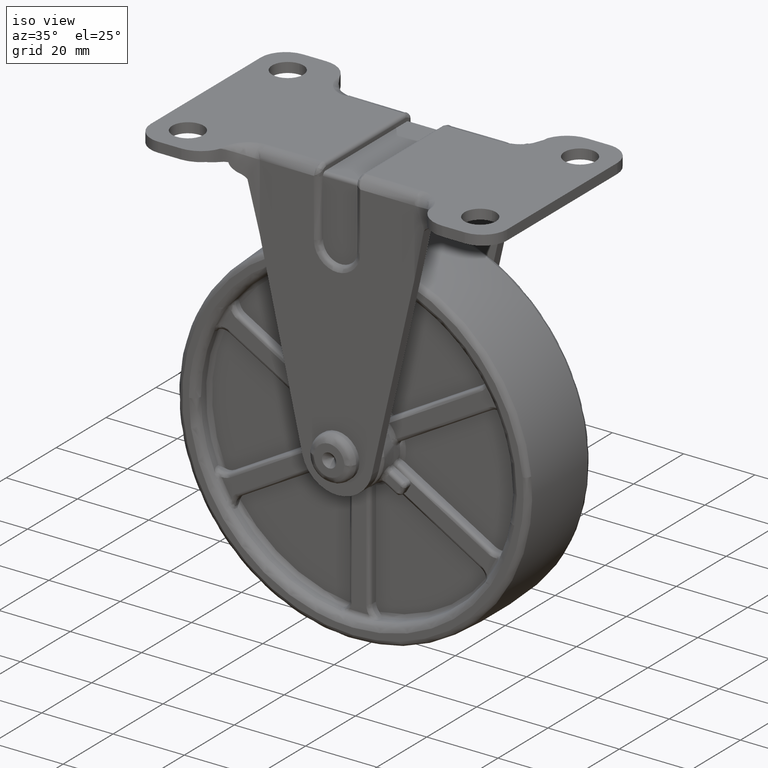
[diagram: clean part render]
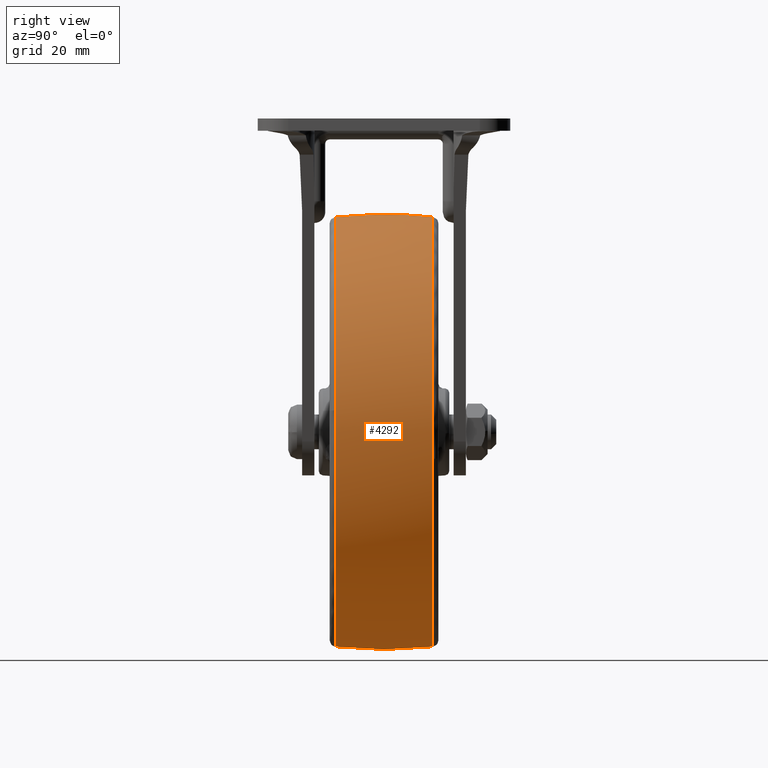
[diagram: tour spotlight — one face highlighted and labeled with its STEP entity id]
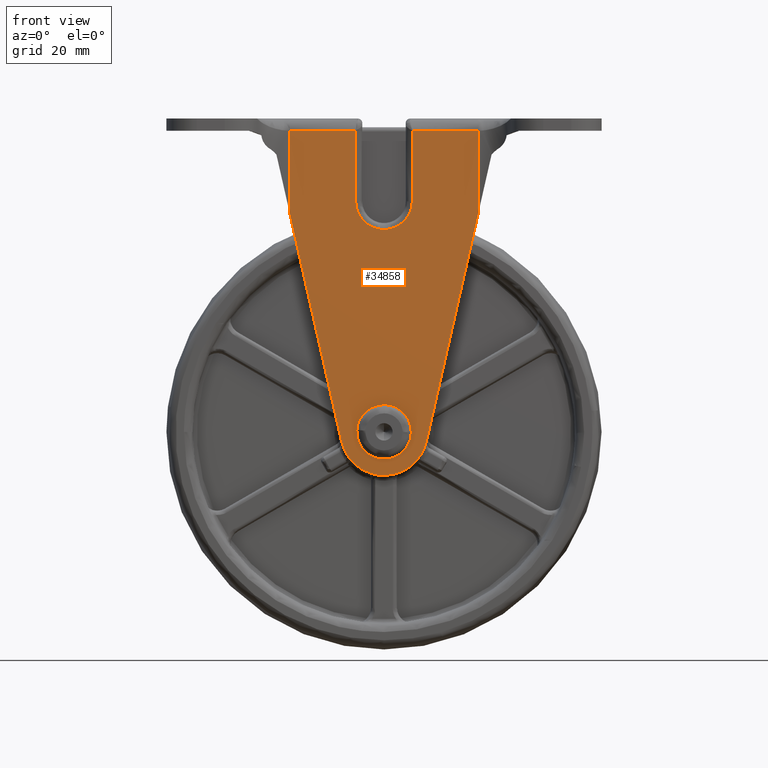
[diagram: tour spotlight — one face highlighted and labeled with its STEP entity id]
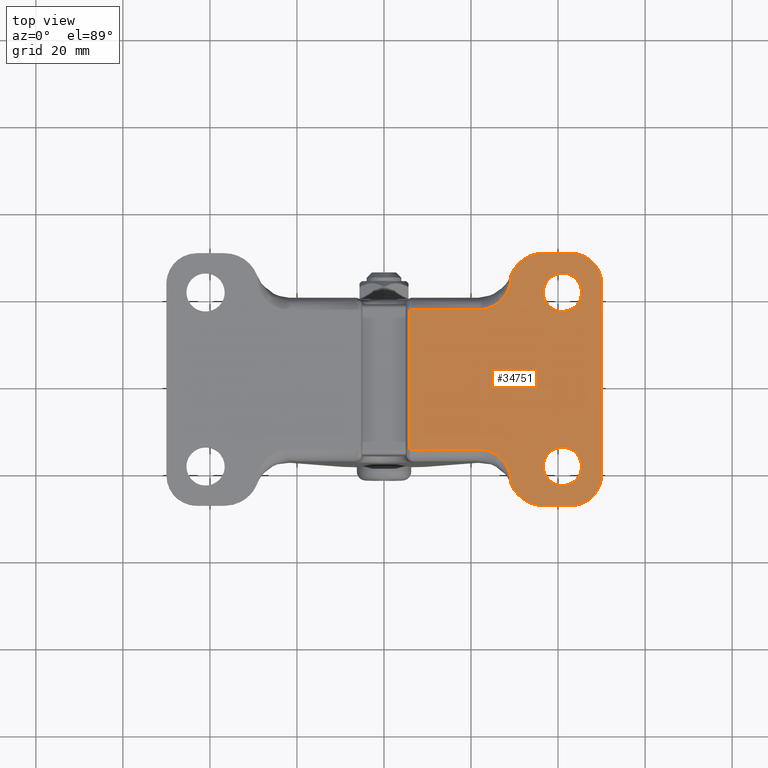
[diagram: tour spotlight — one face highlighted and labeled with its STEP entity id]
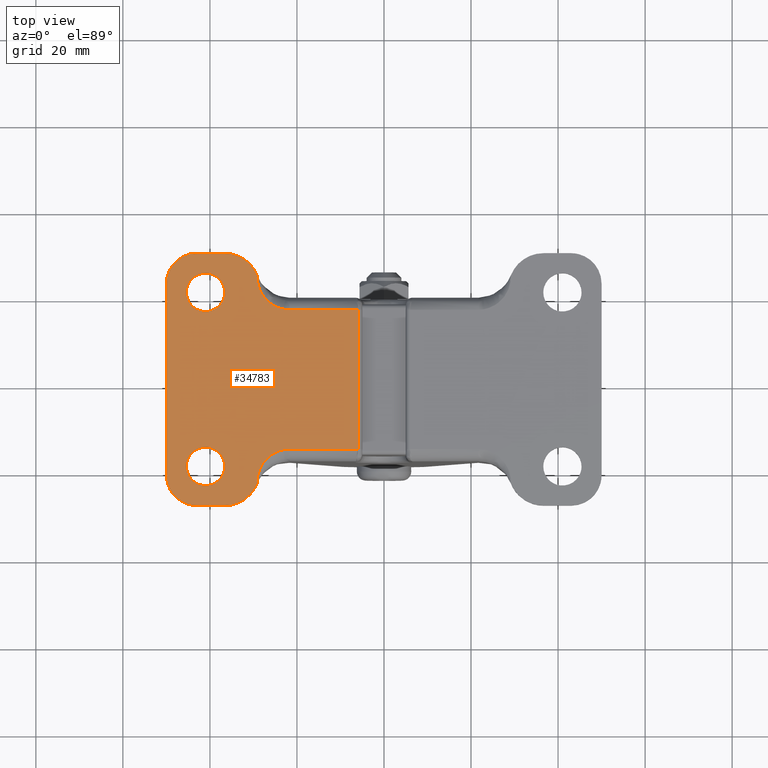
[diagram: tour spotlight — one face highlighted and labeled with its STEP entity id]
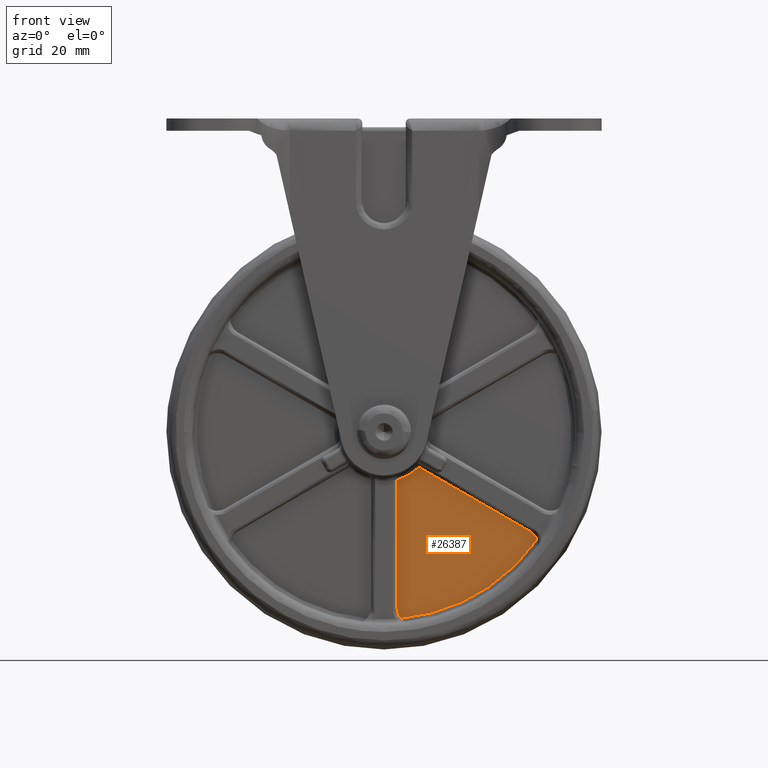
[diagram: tour spotlight — one face highlighted and labeled with its STEP entity id]
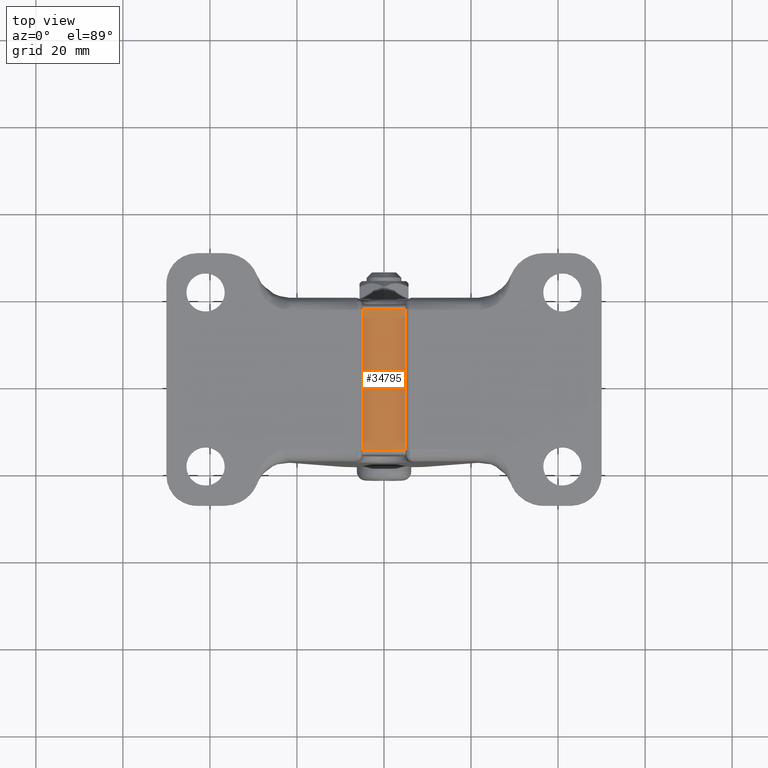
[diagram: tour spotlight — one face highlighted and labeled with its STEP entity id]
A machine part: a face-by-face anatomy tour. The part has 566 B-rep faces; the first image is the clean iso view, then the 6 largest visible faces are spotlighted one at a time (largest first), each with its STEP entity span.

Face 1 — right view, entity #4292. In plain terms, the highlighted face is a freeform B-spline surface patch.
Definition (entity closure, byte-faithful):
#3232=CARTESIAN_POINT('',(13.453441770139751,-11.167512578397110,-47.506233974433137));
#3233=VERTEX_POINT('',#3232);
#3247=CARTESIAN_POINT('',(49.125185510435607,-11.167506535086259,4.955323121720953));
#3248=VERTEX_POINT('',#3247);
#3249=CARTESIAN_POINT('',(13.453441770139751,-11.167512578397110,-47.506233974433144));
#3250=CARTESIAN_POINT('',(49.374476883661401,-11.167511493247051,-37.333645757917360));
#3251=CARTESIAN_POINT('',(49.374476883661387,-11.167507169380171,0.000016642621604));
#3252=CARTESIAN_POINT('',(49.374476883661401,-11.167506881699941,2.483940552879803));
#3253=CARTESIAN_POINT('',(49.125185510435614,-11.167506535086263,4.955323121720954));
#3261=(BOUNDED_CURVE()B_SPLINE_CURVE(2,(#3249,#3250,#3251,#3252,#3253),.UNSPECIFIED.,.F.,.U.)B_SPLINE_CURVE_WITH_KNOTS((3,2,3),(0.046426116434812,0.250000000000000,0.267423438658878),.UNSPECIFIED.)CURVE()GEOMETRIC_REPRESENTATION_ITEM()RATIONAL_B_SPLINE_CURVE((0.911418360696429,0.761498359904948,1.0,0.979587171873610,0.962019637016935))REPRESENTATION_ITEM(''));
#3262=EDGE_CURVE('',#3233,#3248,#3261,.T.);
#3361=CARTESIAN_POINT('',(0.0,-11.167501450984091,49.374494168904697));
#3362=VERTEX_POINT('',#3361);
#3363=CARTESIAN_POINT('',(49.125185510435621,-11.167506535086263,4.955323121720955));
#3364=CARTESIAN_POINT('',(44.644580076568559,-11.167501450984094,49.374494168904704));
#3365=CARTESIAN_POINT('',(0.0,-11.167501450984091,49.374494168904697));
#3373=(BOUNDED_CURVE()B_SPLINE_CURVE(2,(#3363,#3364,#3365),.UNSPECIFIED.,.F.,.U.)B_SPLINE_CURVE_WITH_KNOTS((3,3),(0.267423438658878,0.500000000000000),.UNSPECIFIED.)CURVE()GEOMETRIC_REPRESENTATION_ITEM()RATIONAL_B_SPLINE_CURVE((0.962019637016934,0.727519609312938,1.0))REPRESENTATION_ITEM(''));
#3374=EDGE_CURVE('',#3248,#3362,#3373,.T.);
#3376=CARTESIAN_POINT('',(-49.044247251732713,-11.167514821191080,5.700959570039594));
#3377=VERTEX_POINT('',#3376);
#3391=CARTESIAN_POINT('',(0.0,-11.167512887776240,-49.374460883661492));
#3392=VERTEX_POINT('',#3391);
#3393=CARTESIAN_POINT('',(-49.044247251732713,-11.167514821191080,5.700959570039594));
#3394=CARTESIAN_POINT('',(-49.374476673389537,-11.167514771326257,2.860052107993396));
#3395=CARTESIAN_POINT('',(-49.374476679640807,-11.167514715329339,0.000015976284381));
#3396=CARTESIAN_POINT('',(-49.374476787560099,-11.167513748621921,-49.374460894832396));
#3397=CARTESIAN_POINT('',(0.0,-11.167512887776240,-49.374460883661492));
#3405=(BOUNDED_CURVE()B_SPLINE_CURVE(2,(#3393,#3394,#3395,#3396,#3397),.UNSPECIFIED.,.F.,.U.)B_SPLINE_CURVE_WITH_KNOTS((3,2,3),(0.730000145986059,0.750000000000000,1.0),.UNSPECIFIED.)CURVE()GEOMETRIC_REPRESENTATION_ITEM()RATIONAL_B_SPLINE_CURVE((0.956886405526814,0.976568713528230,1.0,0.707106781186548,1.0))REPRESENTATION_ITEM(''));
#3406=EDGE_CURVE('',#3377,#3392,#3405,.T.);
#3408=CARTESIAN_POINT('',(0.0,-11.167512887776240,-49.374460883661492));
#3409=CARTESIAN_POINT('',(6.856437568470895,-11.167512887776244,-49.374460883661484));
#3410=CARTESIAN_POINT('',(13.453441770139751,-11.167512578397110,-47.506233974433144));
#3418=(BOUNDED_CURVE()B_SPLINE_CURVE(2,(#3408,#3409,#3410),.UNSPECIFIED.,.F.,.U.)B_SPLINE_CURVE_WITH_KNOTS((3,3),(0.0,0.046426116434812),.UNSPECIFIED.)CURVE()GEOMETRIC_REPRESENTATION_ITEM()RATIONAL_B_SPLINE_CURVE((1.0,0.945608421281600,0.911418360696429))REPRESENTATION_ITEM(''));
#3419=EDGE_CURVE('',#3392,#3233,#3418,.T.);
#3448=CARTESIAN_POINT('',(48.985143232751241,11.167500819004200,-6.188246697704848));
#3449=VERTEX_POINT('',#3448);
#3450=CARTESIAN_POINT('',(0.0,11.167485628169199,49.374495070906320));
#3451=VERTEX_POINT('',#3450);
#3452=CARTESIAN_POINT('',(48.985143232751241,11.167500819004193,-6.188246697704848));
#3453=CARTESIAN_POINT('',(49.374475177890091,11.167499895635393,-3.106361700517486));
#3454=CARTESIAN_POINT('',(49.374475177890098,11.167499051133809,0.000017946508065));
#3455=CARTESIAN_POINT('',(49.374475177890091,11.167485628169201,49.374495070906306));
#3456=CARTESIAN_POINT('',(0.0,11.167485628169199,49.374495070906320));
#3464=(BOUNDED_CURVE()B_SPLINE_CURVE(2,(#3452,#3453,#3454,#3455,#3456),.UNSPECIFIED.,.F.,.U.)B_SPLINE_CURVE_WITH_KNOTS((3,2,3),(0.228321250714382,0.250000000000000,0.500000000000000),.UNSPECIFIED.)CURVE()GEOMETRIC_REPRESENTATION_ITEM()RATIONAL_B_SPLINE_CURVE((0.953608346422238,0.974601765367542,1.0,0.707106781186547,1.0))REPRESENTATION_ITEM(''));
#3465=EDGE_CURVE('',#3449,#3451,#3464,.T.);
#3568=CARTESIAN_POINT('',(0.0,11.167512474098420,-49.374459177890202));
#3569=VERTEX_POINT('',#3568);
#3570=CARTESIAN_POINT('',(0.0,11.167512474098420,-49.374459177890202));
#3571=CARTESIAN_POINT('',(43.529453803975329,11.167512474098418,-49.374459177890188));
#3572=CARTESIAN_POINT('',(48.985143232751241,11.167500819004193,-6.188246697704848));
#3580=(BOUNDED_CURVE()B_SPLINE_CURVE(2,(#3570,#3571,#3572),.UNSPECIFIED.,.F.,.U.)B_SPLINE_CURVE_WITH_KNOTS((3,3),(0.0,0.228321250714382),.UNSPECIFIED.)CURVE()GEOMETRIC_REPRESENTATION_ITEM()RATIONAL_B_SPLINE_CURVE((1.0,0.732505015819006,0.953608346422238))REPRESENTATION_ITEM(''));
#3581=EDGE_CURVE('',#3569,#3449,#3580,.T.);
#3583=CARTESIAN_POINT('',(-49.044248125281300,11.167499099310250,5.700959768865777));
#3584=VERTEX_POINT('',#3583);
#3585=CARTESIAN_POINT('',(-49.044248125281300,11.167499099310259,5.700959768865777));
#3586=CARTESIAN_POINT('',(-49.374477480170178,11.167499444260280,2.860052349725892));
#3587=CARTESIAN_POINT('',(-49.374477411724662,11.167499831630240,0.000016259662657));
#3588=CARTESIAN_POINT('',(-49.374476230109494,11.167506519024325,-49.374459055579351));
#3589=CARTESIAN_POINT('',(0.0,11.167512474098420,-49.374459177890202));
#3597=(BOUNDED_CURVE()B_SPLINE_CURVE(2,(#3585,#3586,#3587,#3588,#3589),.UNSPECIFIED.,.F.,.U.)B_SPLINE_CURVE_WITH_KNOTS((3,2,3),(0.730000145654996,0.750000000000000,1.0),.UNSPECIFIED.)CURVE()GEOMETRIC_REPRESENTATION_ITEM()RATIONAL_B_SPLINE_CURVE((0.956886404875201,0.976568713140366,1.0,0.707106781186547,1.0))REPRESENTATION_ITEM(''));
#3598=EDGE_CURVE('',#3584,#3569,#3597,.T.);
#4200=CARTESIAN_POINT('',(-48.912141797698162,-12.293386680871293,5.685645083880570));
#4201=CARTESIAN_POINT('',(-49.665582081654208,-6.170093837611956,5.773226241318850));
#4202=CARTESIAN_POINT('',(-49.665582081654193,0.0,5.773226241318849));
#4203=CARTESIAN_POINT('',(-49.665582081654186,6.170090758022482,5.773226241318846));
#4204=CARTESIAN_POINT('',(-48.912142546953007,12.293380591592436,5.685645170975202));
#4205=CARTESIAN_POINT('',(-49.241486505969760,-12.293386680871292,2.852369322545358));
#4206=CARTESIAN_POINT('',(-49.999999999999993,-6.170093837611954,2.896306836182978));
#4207=CARTESIAN_POINT('',(-50.0,0.0,2.896306836182978));
#4208=CARTESIAN_POINT('',(-50.0,6.170090758022481,2.896306836182979));
#4209=CARTESIAN_POINT('',(-49.241487260269615,12.293380591592436,2.852369366238793));
#4210=CARTESIAN_POINT('',(-49.241486505969753,-12.293386680871301,0.000015999999901));
#4211=CARTESIAN_POINT('',(-50.000000000000007,-6.170093837611955,0.000015999999901));
#4212=CARTESIAN_POINT('',(-50.0,0.0,0.000015999999901));
#4213=CARTESIAN_POINT('',(-50.0,6.170090758022482,0.000015999999901));
#4214=CARTESIAN_POINT('',(-49.241487260269629,12.293380591592440,0.000015999999901));
#4215=CARTESIAN_POINT('',(-49.241486505969753,-12.293386680871295,-49.241470505969865));
#4216=CARTESIAN_POINT('',(-49.999999999999993,-6.170093837611955,-49.999984000000111));
#4217=CARTESIAN_POINT('',(-50.0,0.0,-49.999984000000111));
#4218=CARTESIAN_POINT('',(-50.000000000000014,6.170090758022482,-49.999984000000111));
#4219=CARTESIAN_POINT('',(-49.241487260269629,12.293380591592436,-49.241471260269734));
#4220=CARTESIAN_POINT('',(0.0,-12.293386680871301,-49.241470505969872));
#4221=CARTESIAN_POINT('',(0.0,-6.170093837611955,-49.999984000000119));
#4222=CARTESIAN_POINT('',(0.0,0.0,-49.999984000000097));
#4223=CARTESIAN_POINT('',(0.0,6.170090758022482,-49.999984000000111));
#4224=CARTESIAN_POINT('',(0.0,12.293380591592440,-49.241471260269726));
#4225=CARTESIAN_POINT('',(49.241486505969753,-12.293386680871295,-49.241470505969865));
#4226=CARTESIAN_POINT('',(49.999999999999993,-6.170093837611955,-49.999984000000111));
#4227=CARTESIAN_POINT('',(50.0,0.0,-49.999984000000111));
#4228=CARTESIAN_POINT('',(50.000000000000014,6.170090758022482,-49.999984000000111));
#4229=CARTESIAN_POINT('',(49.241487260269629,12.293380591592436,-49.241471260269734));
#4230=CARTESIAN_POINT('',(49.241486505969753,-12.293386680871301,0.000015999999901));
#4231=CARTESIAN_POINT('',(50.000000000000007,-6.170093837611955,0.000015999999901));
#4232=CARTESIAN_POINT('',(50.0,0.0,0.000015999999901));
#4233=CARTESIAN_POINT('',(50.0,6.170090758022482,0.000015999999901));
#4234=CARTESIAN_POINT('',(49.241487260269629,12.293380591592440,0.000015999999901));
#4235=CARTESIAN_POINT('',(49.241486505969753,-12.293386680871295,49.241502505969663));
#4236=CARTESIAN_POINT('',(49.999999999999993,-6.170093837611955,50.000015999999910));
#4237=CARTESIAN_POINT('',(50.0,0.0,50.000015999999910));
#4238=CARTESIAN_POINT('',(50.000000000000014,6.170090758022482,50.000015999999910));
#4239=CARTESIAN_POINT('',(49.241487260269629,12.293380591592436,49.241503260269532));
#4240=CARTESIAN_POINT('',(0.0,-12.293386680871301,49.241502505969656));
#4241=CARTESIAN_POINT('',(0.0,-6.170093837611955,50.000015999999903));
#4242=CARTESIAN_POINT('',(0.0,0.0,50.000015999999903));
#4243=CARTESIAN_POINT('',(0.0,6.170090758022482,50.000015999999903));
#4244=CARTESIAN_POINT('',(0.0,12.293380591592440,49.241503260269539));
#4252=(BOUNDED_SURFACE()B_SPLINE_SURFACE(2,2,((#4200,#4205,#4210,#4215,#4220,#4225,#4230,#4235,#4240),(#4201,#4206,#4211,#4216,#4221,#4226,#4231,#4236,#4241),(#4202,#4207,#4212,#4217,#4222,#4227,#4232,#4237,#4242),(#4203,#4208,#4213,#4218,#4223,#4228,#4233,#4238,#4243),(#4204,#4209,#4214,#4219,#4224,#4229,#4234,#4239,#4244)),.UNSPECIFIED.,.F.,.F.,.U.)B_SPLINE_SURFACE_WITH_KNOTS((3,2,3),(3,2,2,2,3),(0.0,12.496629759044810,24.993253382269739),(0.0,6.627415615382596,89.470128090001623,172.312840564620590,255.155553039239690),.UNSPECIFIED.)GEOMETRIC_REPRESENTATION_ITEM()RATIONAL_B_SPLINE_SURFACE(((0.929539305940074,0.948659223590073,0.971421029411789,0.686898397284292,0.971421029411789,0.686898397284292,0.971421029411789,0.686898397284292,0.971421029411789),(0.941323491873215,0.960685801279188,0.983736168703693,0.695606515788855,0.983736168703693,0.695606515788855,0.983736168703693,0.695606515788855,0.983736168703693),(0.956886126402807,0.976568547383107,1.0,0.707106781186548,1.0,0.707106781186548,1.0,0.707106781186548,1.0),(0.941323499514438,0.960685809077585,0.983736176689201,0.695606521435462,0.983736176689201,0.695606521435462,0.983736176689201,0.695606521435462,0.983736176689201),(0.929539317512098,0.948659235400124,0.971421041505206,0.686898405835630,0.971421041505206,0.686898405835630,0.971421041505206,0.686898405835630,0.971421041505206)))REPRESENTATION_ITEM('')SURFACE());
#4253=ORIENTED_EDGE('',*,*,#3406,.F.);
#4254=CARTESIAN_POINT('',(-49.044247251732720,-11.167514821191075,5.700959570039594));
#4255=CARTESIAN_POINT('',(-49.665586642380653,-5.601276079178630,5.773185138705915));
#4256=CARTESIAN_POINT('',(-49.665586424053942,-0.000000048614962,5.773185137724423));
#4257=CARTESIAN_POINT('',(-49.665586205727536,5.601268095782933,5.773185136742934));
#4258=CARTESIAN_POINT('',(-49.044248125281307,11.167499099310255,5.700959768865777));
#4266=(BOUNDED_CURVE()B_SPLINE_CURVE(2,(#4254,#4255,#4256,#4257,#4258),.UNSPECIFIED.,.F.,.U.)B_SPLINE_CURVE_WITH_KNOTS((3,2,3),(0.444815480394185,0.500000000000000,0.555184443059112),.UNSPECIFIED.)CURVE()GEOMETRIC_REPRESENTATION_ITEM()RATIONAL_B_SPLINE_CURVE((0.931711096272141,0.942736980498662,0.956886118190660,0.942737000124996,0.931711126860258))REPRESENTATION_ITEM(''));
#4267=EDGE_CURVE('',#3377,#3584,#4266,.T.);
#4268=ORIENTED_EDGE('',*,*,#4267,.T.);
#4269=ORIENTED_EDGE('',*,*,#3598,.T.);
#4270=ORIENTED_EDGE('',*,*,#3581,.T.);
#4271=ORIENTED_EDGE('',*,*,#3465,.T.);
#4272=CARTESIAN_POINT('',(0.0,-11.167501450984100,49.374494168904697));
#4273=CARTESIAN_POINT('',(0.0,-5.601269306657856,50.000015999999896));
#4274=CARTESIAN_POINT('',(0.0,0.0,50.000015999999903));
#4275=CARTESIAN_POINT('',(0.0,5.601261369548253,50.000015999999896));
#4276=CARTESIAN_POINT('',(0.0,11.167485628169198,49.374495070906320));
#4284=(BOUNDED_CURVE()B_SPLINE_CURVE(2,(#4272,#4273,#4274,#4275,#4276),.UNSPECIFIED.,.F.,.U.)B_SPLINE_CURVE_WITH_KNOTS((3,2,3),(0.444815545896164,0.500000000000000,0.555184377062646),.UNSPECIFIED.)CURVE()GEOMETRIC_REPRESENTATION_ITEM()RATIONAL_B_SPLINE_CURVE((0.973690708575139,0.985213370088125,1.0,0.985213390731249,0.973690740747958))REPRESENTATION_ITEM(''));
#4285=EDGE_CURVE('',#3362,#3451,#4284,.T.);
#4286=ORIENTED_EDGE('',*,*,#4285,.F.);
#4287=ORIENTED_EDGE('',*,*,#3374,.F.);
#4288=ORIENTED_EDGE('',*,*,#3262,.F.);
#4289=ORIENTED_EDGE('',*,*,#3419,.F.);
#4290=EDGE_LOOP('',(#4253,#4268,#4269,#4270,#4271,#4286,#4287,#4288,#4289));
#4291=FACE_OUTER_BOUND('',#4290,.T.);
#4292=ADVANCED_FACE('',(#4291),#4252,.T.);

Face 2 — front view, entity #34858. In plain terms, the highlighted face is a freeform B-spline surface patch.
Definition (entity closure, byte-faithful):
#28033=CARTESIAN_POINT('',(-3.999847692252237,-18.799995000000049,0.034906142503147));
#28034=VERTEX_POINT('',#28033);
#28040=CARTESIAN_POINT('',(0.0,-18.799995000000049,-4.0));
#28041=VERTEX_POINT('',#28040);
#28042=CARTESIAN_POINT('',(-3.999847692252237,-18.799995000000052,0.034906142503147));
#28043=CARTESIAN_POINT('',(-4.0,-18.799995000000052,0.017453403792486));
#28044=CARTESIAN_POINT('',(-4.0,-18.799995000000049,0.0));
#28045=CARTESIAN_POINT('',(-4.000000000000000,-18.799995000000045,-4.000000000000000));
#28046=CARTESIAN_POINT('',(0.0,-18.799995000000049,-4.0));
#28054=(BOUNDED_CURVE()B_SPLINE_CURVE(2,(#28042,#28043,#28044,#28045,#28046),.UNSPECIFIED.,.F.,.U.)B_SPLINE_CURVE_WITH_KNOTS((3,2,3),(0.248460105620125,0.250000000000000,0.500000000000000),.UNSPECIFIED.)CURVE()GEOMETRIC_REPRESENTATION_ITEM()RATIONAL_B_SPLINE_CURVE((0.996414027996524,0.998195901513783,1.0,0.707106781186548,1.0))REPRESENTATION_ITEM(''));
#28055=EDGE_CURVE('',#28034,#28041,#28054,.T.);
#28057=CARTESIAN_POINT('',(3.969064855300234,-18.799995000000049,-0.496512008334668));
#28058=VERTEX_POINT('',#28057);
#28059=CARTESIAN_POINT('',(0.0,-18.799995000000049,-4.0));
#28060=CARTESIAN_POINT('',(3.530794400573398,-18.799995000000038,-4.000000000000000));
#28061=CARTESIAN_POINT('',(3.969064855300234,-18.799995000000045,-0.496512008334668));
#28069=(BOUNDED_CURVE()B_SPLINE_CURVE(2,(#28059,#28060,#28061),.UNSPECIFIED.,.F.,.U.)B_SPLINE_CURVE_WITH_KNOTS((3,3),(0.500000000000000,0.728526071027995),.UNSPECIFIED.)CURVE()GEOMETRIC_REPRESENTATION_ITEM()RATIONAL_B_SPLINE_CURVE((1.0,0.732265053895276,0.954005430272188))REPRESENTATION_ITEM(''));
#28070=EDGE_CURVE('',#28041,#28058,#28069,.T.);
#28120=CARTESIAN_POINT('',(0.0,-18.799995000000049,4.0));
#28121=VERTEX_POINT('',#28120);
#28122=CARTESIAN_POINT('',(3.969064855300234,-18.799995000000049,-0.496512008334668));
#28123=CARTESIAN_POINT('',(4.000000000000001,-18.799995000000049,-0.249219710149508));
#28124=CARTESIAN_POINT('',(4.0,-18.799995000000049,0.0));
#28125=CARTESIAN_POINT('',(4.000000000000000,-18.799995000000045,4.000000000000000));
#28126=CARTESIAN_POINT('',(0.0,-18.799995000000049,4.0));
#28134=(BOUNDED_CURVE()B_SPLINE_CURVE(2,(#28122,#28123,#28124,#28125,#28126),.UNSPECIFIED.,.F.,.U.)B_SPLINE_CURVE_WITH_KNOTS((3,2,3),(0.728526071027994,0.750000000000000,1.0),.UNSPECIFIED.)CURVE()GEOMETRIC_REPRESENTATION_ITEM()RATIONAL_B_SPLINE_CURVE((0.954005430272187,0.974841727291271,1.0,0.707106781186548,1.0))REPRESENTATION_ITEM(''));
#28135=EDGE_CURVE('',#28058,#28121,#28134,.T.);
#28137=CARTESIAN_POINT('',(0.0,-18.799995000000049,4.0));
#28138=CARTESIAN_POINT('',(-3.965244841369388,-18.799995000000052,4.0));
#28139=CARTESIAN_POINT('',(-3.999847692252236,-18.799995000000049,0.034906142503147));
#28147=(BOUNDED_CURVE()B_SPLINE_CURVE(2,(#28137,#28138,#28139),.UNSPECIFIED.,.F.,.U.)B_SPLINE_CURVE_WITH_KNOTS((3,3),(0.0,0.248460105620125),.UNSPECIFIED.)CURVE()GEOMETRIC_REPRESENTATION_ITEM()RATIONAL_B_SPLINE_CURVE((1.0,0.708910879672764,0.996414027996524))REPRESENTATION_ITEM(''));
#28148=EDGE_CURVE('',#28121,#28034,#28147,.T.);
#29313=CARTESIAN_POINT('',(6.499997999999920,-18.799995000000049,69.200000000000003));
#29314=VERTEX_POINT('',#29313);
#30101=CARTESIAN_POINT('',(-6.500000000000000,-18.799995000000049,69.200000000000003));
#30102=VERTEX_POINT('',#30101);
#30329=CARTESIAN_POINT('',(21.703261999999899,-18.799995000000049,69.200000000000003));
#30330=VERTEX_POINT('',#30329);
#30331=CARTESIAN_POINT('',(21.703261999999899,-18.799995000000049,69.200000000000003));
#30332=CARTESIAN_POINT('',(16.635507333333251,-18.799995000000049,69.200000000000003));
#30333=CARTESIAN_POINT('',(11.567752666666600,-18.799995000000049,69.200000000000003));
#30334=CARTESIAN_POINT('',(6.499997999999920,-18.799995000000049,69.200000000000003));
#30335=B_SPLINE_CURVE_WITH_KNOTS('',3,(#30331,#30332,#30333,#30334),.UNSPECIFIED.,.F.,.U.,(4,4),(0.0,0.303399064198869),.UNSPECIFIED.);
#30336=EDGE_CURVE('',#30330,#29314,#30335,.T.);
#30482=CARTESIAN_POINT('',(-21.703259000000099,-18.799995000000049,69.200000000000003));
#30483=VERTEX_POINT('',#30482);
#30497=CARTESIAN_POINT('',(-6.500000000000000,-18.799995000000049,69.200000000000003));
#30498=CARTESIAN_POINT('',(-11.567753000000019,-18.799995000000049,69.200000000000003));
#30499=CARTESIAN_POINT('',(-16.635506000000049,-18.799995000000049,69.200000000000003));
#30500=CARTESIAN_POINT('',(-21.703259000000099,-18.799995000000049,69.200000000000003));
#30501=B_SPLINE_CURVE_WITH_KNOTS('',3,(#30497,#30498,#30499,#30500),.UNSPECIFIED.,.F.,.U.,(4,4),(0.696600944761738,1.0),.UNSPECIFIED.);
#30502=EDGE_CURVE('',#30102,#30483,#30501,.T.);
#31975=CARTESIAN_POINT('',(-6.499998000000090,-18.799995000000049,52.999997999999998));
#31976=VERTEX_POINT('',#31975);
#31977=CARTESIAN_POINT('',(-6.499998000000090,-18.799995000000049,52.999997999999998));
#31978=CARTESIAN_POINT('',(-6.500000000000000,-18.799995000000049,69.200000000000003));
#31979=QUASI_UNIFORM_CURVE('',1,(#31977,#31978),.UNSPECIFIED.,.F.,.U.);
#31980=EDGE_CURVE('',#31976,#30102,#31979,.T.);
#32028=CARTESIAN_POINT('',(6.499997999999920,-18.799995000000049,52.999997999999998));
#32029=VERTEX_POINT('',#32028);
#32061=CARTESIAN_POINT('',(6.499997999999920,-18.799995000000049,52.999997999999998));
#32062=CARTESIAN_POINT('',(6.499997999999922,-18.799995000000045,46.499997999999998));
#32063=CARTESIAN_POINT('',(-8.531232E-014,-18.799995000000049,46.499997999999998));
#32064=CARTESIAN_POINT('',(-6.499998000000091,-18.799995000000045,46.499997999999998));
#32065=CARTESIAN_POINT('',(-6.499998000000090,-18.799995000000049,52.999997999999998));
#32073=(BOUNDED_CURVE()B_SPLINE_CURVE(2,(#32061,#32062,#32063,#32064,#32065),.UNSPECIFIED.,.F.,.U.)B_SPLINE_CURVE_WITH_KNOTS((3,2,3),(0.0,0.500000000000000,1.0),.UNSPECIFIED.)CURVE()GEOMETRIC_REPRESENTATION_ITEM()RATIONAL_B_SPLINE_CURVE((1.0,0.707106781186547,1.0,0.707106781186547,1.0))REPRESENTATION_ITEM(''));
#32074=EDGE_CURVE('',#32029,#31976,#32073,.T.);
#32093=CARTESIAN_POINT('',(6.499997999999920,-18.799995000000049,69.200000000000003));
#32094=CARTESIAN_POINT('',(6.499997999999920,-18.799995000000049,52.999997999999998));
#32095=QUASI_UNIFORM_CURVE('',1,(#32093,#32094),.UNSPECIFIED.,.F.,.U.);
#32096=EDGE_CURVE('',#29314,#32029,#32095,.T.);
#32248=CARTESIAN_POINT('',(0.017467054338891,-18.799994999998500,-10.0));
#32249=VERTEX_POINT('',#32248);
#32270=CARTESIAN_POINT('',(9.751882999999999,-18.799995000000049,-2.213885999999890));
#32271=VERTEX_POINT('',#32270);
#32277=CARTESIAN_POINT('',(0.017467054338891,-18.799994999998500,-10.0));
#32278=CARTESIAN_POINT('',(7.987426704086894,-18.799995000000045,-9.986089310882568));
#32279=CARTESIAN_POINT('',(9.751882999999999,-18.799995000000049,-2.213885999999890));
#32287=(BOUNDED_CURVE()B_SPLINE_CURVE(2,(#32277,#32278,#32279),.UNSPECIFIED.,.F.,.U.)CURVE()GEOMETRIC_REPRESENTATION_ITEM()QUASI_UNIFORM_CURVE()RATIONAL_B_SPLINE_CURVE((1.0,0.782013351114645,1.0))REPRESENTATION_ITEM(''));
#32288=EDGE_CURVE('',#32249,#32271,#32287,.T.);
#32524=CARTESIAN_POINT('',(21.703261999999899,-18.799995000000049,50.430403149337003));
#32525=VERTEX_POINT('',#32524);
#32526=CARTESIAN_POINT('',(21.703261999999899,-18.799995000000049,50.430403149337003));
#32527=CARTESIAN_POINT('',(9.751882999999999,-18.799995000000049,-2.213885999999890));
#32528=QUASI_UNIFORM_CURVE('',1,(#32526,#32527),.UNSPECIFIED.,.F.,.U.);
#32529=EDGE_CURVE('',#32525,#32271,#32528,.T.);
#32824=CARTESIAN_POINT('',(-9.751858431968641,-18.799995000000049,-2.213878299013340));
#32825=VERTEX_POINT('',#32824);
#32831=CARTESIAN_POINT('',(-21.703259000000099,-18.799995000000049,50.430478844339603));
#32832=VERTEX_POINT('',#32831);
#32833=CARTESIAN_POINT('',(-9.751858431968641,-18.799995000000049,-2.213878299013340));
#32834=CARTESIAN_POINT('',(-21.703259000000099,-18.799995000000049,50.430478844339603));
#32835=QUASI_UNIFORM_CURVE('',1,(#32833,#32834),.UNSPECIFIED.,.F.,.U.);
#32836=EDGE_CURVE('',#32825,#32832,#32835,.T.);
#32884=CARTESIAN_POINT('',(-0.017440738022249,-18.799995000000749,-9.999999999999879));
#32885=VERTEX_POINT('',#32884);
#32891=CARTESIAN_POINT('',(-9.751858431968643,-18.799995000000049,-2.213878299013341));
#32892=CARTESIAN_POINT('',(-7.987406844314037,-18.799995000000052,-9.986089299613376));
#32893=CARTESIAN_POINT('',(-0.017440738022249,-18.799995000000749,-9.999999999999879));
#32901=(BOUNDED_CURVE()B_SPLINE_CURVE(2,(#32891,#32892,#32893),.UNSPECIFIED.,.F.,.U.)CURVE()GEOMETRIC_REPRESENTATION_ITEM()QUASI_UNIFORM_CURVE()RATIONAL_B_SPLINE_CURVE((1.0,0.782013105021812,1.0))REPRESENTATION_ITEM(''));
#32902=EDGE_CURVE('',#32825,#32885,#32901,.T.);
#34295=CARTESIAN_POINT('',(21.703261999999899,-18.799995000000049,50.430403149337003));
#34296=CARTESIAN_POINT('',(21.703261999999899,-18.799995000000049,69.200000000000003));
#34297=QUASI_UNIFORM_CURVE('',1,(#34295,#34296),.UNSPECIFIED.,.F.,.U.);
#34298=EDGE_CURVE('',#32525,#30330,#34297,.T.);
#34321=CARTESIAN_POINT('',(-21.703259000000099,-18.799995000000049,50.430478844339603));
#34322=CARTESIAN_POINT('',(-21.703259000000099,-18.799995000000049,69.200000000000003));
#34323=QUASI_UNIFORM_CURVE('',1,(#34321,#34322),.UNSPECIFIED.,.F.,.U.);
#34324=EDGE_CURVE('',#32832,#30483,#34323,.T.);
#34607=CARTESIAN_POINT('',(0.017467054338891,-18.799994999998500,-10.0));
#34608=CARTESIAN_POINT('',(-0.017440738022249,-18.799995000000749,-9.999999999999879));
#34609=QUASI_UNIFORM_CURVE('',1,(#34607,#34608),.UNSPECIFIED.,.F.,.U.);
#34610=EDGE_CURVE('',#32249,#32885,#34609,.T.);
#34833=CARTESIAN_POINT('',(-23.871414232350482,-18.799995000000049,73.156036872603323));
#34834=CARTESIAN_POINT('',(-23.871414232350482,-18.799995000000049,-13.956041829325549));
#34835=CARTESIAN_POINT('',(23.871418784688430,-18.799995000000049,73.156036872603323));
#34836=CARTESIAN_POINT('',(23.871418784688430,-18.799995000000049,-13.956041829325549));
#34837=B_SPLINE_SURFACE_WITH_KNOTS('',1,1,((#34833,#34835),(#34834,#34836)),.UNSPECIFIED.,.F.,.F.,.U.,(2,2),(2,2),(0.0,87.112078701928880),(0.0,47.742833017038919),.UNSPECIFIED.);
#34838=ORIENTED_EDGE('',*,*,#31980,.T.);
#34839=ORIENTED_EDGE('',*,*,#30502,.T.);
#34840=ORIENTED_EDGE('',*,*,#34324,.F.);
#34841=ORIENTED_EDGE('',*,*,#32836,.F.);
#34842=ORIENTED_EDGE('',*,*,#32902,.T.);
#34843=ORIENTED_EDGE('',*,*,#34610,.F.);
#34844=ORIENTED_EDGE('',*,*,#32288,.T.);
#34845=ORIENTED_EDGE('',*,*,#32529,.F.);
#34846=ORIENTED_EDGE('',*,*,#34298,.T.);
#34847=ORIENTED_EDGE('',*,*,#30336,.T.);
#34848=ORIENTED_EDGE('',*,*,#32096,.T.);
#34849=ORIENTED_EDGE('',*,*,#32074,.T.);
#34850=EDGE_LOOP('',(#34838,#34839,#34840,#34841,#34842,#34843,#34844,#34845,#34846,#34847,#34848,#34849));
#34851=FACE_OUTER_BOUND('',#34850,.T.);
#34852=ORIENTED_EDGE('',*,*,#28148,.F.);
#34853=ORIENTED_EDGE('',*,*,#28135,.F.);
#34854=ORIENTED_EDGE('',*,*,#28070,.F.);
#34855=ORIENTED_EDGE('',*,*,#28055,.F.);
#34856=EDGE_LOOP('',(#34852,#34853,#34854,#34855));
#34857=FACE_BOUND('',#34856,.T.);
#34858=ADVANCED_FACE('',(#34851,#34857),#34837,.T.);

Face 3 — top view, entity #34751. In plain terms, the highlighted face is a freeform B-spline surface patch.
Definition (entity closure, byte-faithful):
#28576=CARTESIAN_POINT('',(40.480649333362727,15.630758088058821,72.0));
#28577=VERTEX_POINT('',#28576);
#28583=CARTESIAN_POINT('',(45.400000000000013,20.0,72.0));
#28584=VERTEX_POINT('',#28583);
#28585=CARTESIAN_POINT('',(40.480649333362734,15.630758088058821,72.0));
#28586=CARTESIAN_POINT('',(40.739413839023058,15.599999999999994,72.0));
#28587=CARTESIAN_POINT('',(41.0,15.600000000000000,72.0));
#28588=CARTESIAN_POINT('',(45.400000000000020,15.599999999999996,72.0));
#28589=CARTESIAN_POINT('',(45.400000000000013,20.0,72.0));
#28597=(BOUNDED_CURVE()B_SPLINE_CURVE(2,(#28585,#28586,#28587,#28588,#28589),.UNSPECIFIED.,.F.,.U.)B_SPLINE_CURVE_WITH_KNOTS((3,2,3),(0.229562470873976,0.250000000000000,0.500000000000000),.UNSPECIFIED.)CURVE()GEOMETRIC_REPRESENTATION_ITEM()RATIONAL_B_SPLINE_CURVE((0.956026749010108,0.976055945238741,1.0,0.707106781186548,1.0))REPRESENTATION_ITEM(''));
#28598=EDGE_CURVE('',#28577,#28584,#28597,.T.);
#28600=CARTESIAN_POINT('',(41.268613574037587,24.391793113051069,72.0));
#28601=VERTEX_POINT('',#28600);
#28602=CARTESIAN_POINT('',(45.400000000000013,20.0,72.0));
#28603=CARTESIAN_POINT('',(45.400000000000006,24.139106694225994,71.999999999999986));
#28604=CARTESIAN_POINT('',(41.268613574037595,24.391793113051072,72.0));
#28612=(BOUNDED_CURVE()B_SPLINE_CURVE(2,(#28602,#28603,#28604),.UNSPECIFIED.,.F.,.U.)B_SPLINE_CURVE_WITH_KNOTS((3,3),(0.500000000000000,0.739332962235350),.UNSPECIFIED.)CURVE()GEOMETRIC_REPRESENTATION_ITEM()RATIONAL_B_SPLINE_CURVE((1.0,0.719603993290919,0.976072041659018))REPRESENTATION_ITEM(''));
#28613=EDGE_CURVE('',#28584,#28601,#28612,.T.);
#28687=CARTESIAN_POINT('',(36.600000000000001,20.0,72.0));
#28688=VERTEX_POINT('',#28687);
#28689=CARTESIAN_POINT('',(41.268613574037587,24.391793113051069,72.0));
#28690=CARTESIAN_POINT('',(41.134432158598244,24.400000000000006,72.0));
#28691=CARTESIAN_POINT('',(41.0,24.399999999999999,72.0));
#28692=CARTESIAN_POINT('',(36.600000000000001,24.400000000000002,72.0));
#28693=CARTESIAN_POINT('',(36.600000000000001,20.0,72.0));
#28701=(BOUNDED_CURVE()B_SPLINE_CURVE(2,(#28689,#28690,#28691,#28692,#28693),.UNSPECIFIED.,.F.,.U.)B_SPLINE_CURVE_WITH_KNOTS((3,2,3),(0.739332962235351,0.750000000000000,1.0),.UNSPECIFIED.)CURVE()GEOMETRIC_REPRESENTATION_ITEM()RATIONAL_B_SPLINE_CURVE((0.976072041659019,0.987502787895629,1.0,0.707106781186548,1.0))REPRESENTATION_ITEM(''));
#28702=EDGE_CURVE('',#28601,#28688,#28701,.T.);
#28704=CARTESIAN_POINT('',(36.600000000000001,20.0,72.0));
#28705=CARTESIAN_POINT('',(36.600000000000009,16.092032147328940,72.000000000000014));
#28706=CARTESIAN_POINT('',(40.480649333362734,15.630758088058817,72.0));
#28714=(BOUNDED_CURVE()B_SPLINE_CURVE(2,(#28704,#28705,#28706),.UNSPECIFIED.,.F.,.U.)B_SPLINE_CURVE_WITH_KNOTS((3,3),(0.0,0.229562470873976),.UNSPECIFIED.)CURVE()GEOMETRIC_REPRESENTATION_ITEM()RATIONAL_B_SPLINE_CURVE((1.0,0.731050835947807,0.956026749010108))REPRESENTATION_ITEM(''));
#28715=EDGE_CURVE('',#28688,#28577,#28714,.T.);
#28762=CARTESIAN_POINT('',(40.480649333362727,-24.369241911941181,72.0));
#28763=VERTEX_POINT('',#28762);
#28769=CARTESIAN_POINT('',(45.400000000000013,-20.0,72.0));
#28770=VERTEX_POINT('',#28769);
#28771=CARTESIAN_POINT('',(40.480649333362734,-24.369241911941181,72.0));
#28772=CARTESIAN_POINT('',(40.739413839023058,-24.400000000000006,72.0));
#28773=CARTESIAN_POINT('',(41.0,-24.399999999999999,72.0));
#28774=CARTESIAN_POINT('',(45.400000000000020,-24.400000000000002,72.0));
#28775=CARTESIAN_POINT('',(45.400000000000013,-20.0,72.0));
#28783=(BOUNDED_CURVE()B_SPLINE_CURVE(2,(#28771,#28772,#28773,#28774,#28775),.UNSPECIFIED.,.F.,.U.)B_SPLINE_CURVE_WITH_KNOTS((3,2,3),(0.229562470873976,0.250000000000000,0.500000000000000),.UNSPECIFIED.)CURVE()GEOMETRIC_REPRESENTATION_ITEM()RATIONAL_B_SPLINE_CURVE((0.956026749010108,0.976055945238741,1.0,0.707106781186548,1.0))REPRESENTATION_ITEM(''));
#28784=EDGE_CURVE('',#28763,#28770,#28783,.T.);
#28786=CARTESIAN_POINT('',(41.268613574037587,-15.608206886948940,72.0));
#28787=VERTEX_POINT('',#28786);
#28788=CARTESIAN_POINT('',(45.400000000000013,-20.0,72.0));
#28789=CARTESIAN_POINT('',(45.400000000000006,-15.860893305773999,71.999999999999986));
#28790=CARTESIAN_POINT('',(41.268613574037595,-15.608206886948935,72.0));
#28798=(BOUNDED_CURVE()B_SPLINE_CURVE(2,(#28788,#28789,#28790),.UNSPECIFIED.,.F.,.U.)B_SPLINE_CURVE_WITH_KNOTS((3,3),(0.500000000000000,0.739332962235350),.UNSPECIFIED.)CURVE()GEOMETRIC_REPRESENTATION_ITEM()RATIONAL_B_SPLINE_CURVE((1.0,0.719603993290919,0.976072041659018))REPRESENTATION_ITEM(''));
#28799=EDGE_CURVE('',#28770,#28787,#28798,.T.);
#28873=CARTESIAN_POINT('',(36.600000000000001,-20.0,72.0));
#28874=VERTEX_POINT('',#28873);
#28875=CARTESIAN_POINT('',(41.268613574037587,-15.608206886948935,72.0));
#28876=CARTESIAN_POINT('',(41.134432158598244,-15.599999999999998,72.0));
#28877=CARTESIAN_POINT('',(41.0,-15.600000000000000,72.0));
#28878=CARTESIAN_POINT('',(36.600000000000001,-15.599999999999996,72.0));
#28879=CARTESIAN_POINT('',(36.600000000000001,-20.0,72.0));
#28887=(BOUNDED_CURVE()B_SPLINE_CURVE(2,(#28875,#28876,#28877,#28878,#28879),.UNSPECIFIED.,.F.,.U.)B_SPLINE_CURVE_WITH_KNOTS((3,2,3),(0.739332962235351,0.750000000000000,1.0),.UNSPECIFIED.)CURVE()GEOMETRIC_REPRESENTATION_ITEM()RATIONAL_B_SPLINE_CURVE((0.976072041659019,0.987502787895629,1.0,0.707106781186548,1.0))REPRESENTATION_ITEM(''));
#28888=EDGE_CURVE('',#28787,#28874,#28887,.T.);
#28890=CARTESIAN_POINT('',(36.600000000000001,-20.0,72.0));
#28891=CARTESIAN_POINT('',(36.600000000000009,-23.907967852671060,72.000000000000014));
#28892=CARTESIAN_POINT('',(40.480649333362734,-24.369241911941184,72.0));
#28900=(BOUNDED_CURVE()B_SPLINE_CURVE(2,(#28890,#28891,#28892),.UNSPECIFIED.,.F.,.U.)B_SPLINE_CURVE_WITH_KNOTS((3,3),(0.0,0.229562470873976),.UNSPECIFIED.)CURVE()GEOMETRIC_REPRESENTATION_ITEM()RATIONAL_B_SPLINE_CURVE((1.0,0.731050835947807,0.956026749010108))REPRESENTATION_ITEM(''));
#28901=EDGE_CURVE('',#28874,#28763,#28900,.T.);
#29427=CARTESIAN_POINT('',(5.999997999999921,-15.999995000000050,72.0));
#29428=VERTEX_POINT('',#29427);
#29492=CARTESIAN_POINT('',(5.999997999999921,16.0,72.0));
#29493=VERTEX_POINT('',#29492);
#29515=CARTESIAN_POINT('',(5.999997999999921,16.0,72.0));
#29516=CARTESIAN_POINT('',(5.999997999999921,-15.999995000000050,72.0));
#29517=QUASI_UNIFORM_CURVE('',1,(#29515,#29516),.UNSPECIFIED.,.F.,.U.);
#29518=EDGE_CURVE('',#29493,#29428,#29517,.T.);
#30188=CARTESIAN_POINT('',(21.703254460177501,16.000000000002601,72.0));
#30189=VERTEX_POINT('',#30188);
#30190=CARTESIAN_POINT('',(21.703254460177501,16.000000000002601,72.0));
#30191=CARTESIAN_POINT('',(16.635502306784950,16.0,72.0));
#30192=CARTESIAN_POINT('',(11.567750153392440,16.0,72.0));
#30193=CARTESIAN_POINT('',(6.499997999999920,16.0,72.0));
#30194=CARTESIAN_POINT('',(6.333331333333267,16.0,72.0));
#30195=CARTESIAN_POINT('',(6.166664666666615,16.0,72.0));
#30196=CARTESIAN_POINT('',(5.999997999999962,16.0,72.0));
#30197=B_SPLINE_CURVE_WITH_KNOTS('',3,(#30190,#30191,#30192,#30193,#30194,#30195,#30196),.UNSPECIFIED.,.F.,.U.,(4,3,4),(0.686622852762373,0.990021867942418,0.999999960990270),.UNSPECIFIED.);
#30198=EDGE_CURVE('',#30189,#29493,#30197,.T.);
#30257=CARTESIAN_POINT('',(29.159134870689101,23.900000106008800,72.0));
#30258=VERTEX_POINT('',#30257);
#30259=CARTESIAN_POINT('',(29.159134870689101,23.900000106008800,72.0));
#30260=CARTESIAN_POINT('',(29.216655644579689,22.511609303173639,72.0));
#30261=CARTESIAN_POINT('',(28.774594215185790,21.187217592351331,72.0));
#30262=CARTESIAN_POINT('',(28.296371902286729,19.754489864889990,72.0));
#30263=CARTESIAN_POINT('',(27.306712325051521,18.608114864066149,72.0));
#30264=CARTESIAN_POINT('',(26.277914571775781,17.416404045125809,72.0));
#30265=CARTESIAN_POINT('',(24.820408163872489,16.721354876252349,72.0));
#30266=CARTESIAN_POINT('',(23.308201692717500,16.000220584669108,72.0));
#30267=CARTESIAN_POINT('',(21.703254460177501,16.000000000002601,72.0));
#30268=B_SPLINE_CURVE_WITH_KNOTS('',2,(#30259,#30260,#30261,#30262,#30263,#30264,#30265,#30266,#30267),.UNSPECIFIED.,.F.,.U.,(3,2,2,2,3),(0.000000089337005,0.250000000000000,0.500000000000000,0.750000000000000,1.0),.UNSPECIFIED.);
#30269=EDGE_CURVE('',#30258,#30189,#30268,.T.);
#30338=CARTESIAN_POINT('',(21.703261999999899,-15.999995000000050,72.0));
#30339=VERTEX_POINT('',#30338);
#30353=CARTESIAN_POINT('',(5.999997999999914,-15.999995000000050,72.0));
#30354=CARTESIAN_POINT('',(6.166664666666581,-15.999995000000050,72.0));
#30355=CARTESIAN_POINT('',(6.333331333333251,-15.999995000000050,72.0));
#30356=CARTESIAN_POINT('',(6.499997999999920,-15.999995000000050,72.0));
#30357=CARTESIAN_POINT('',(11.567752666666600,-15.999995000000050,72.0));
#30358=CARTESIAN_POINT('',(16.635507333333251,-15.999995000000050,72.0));
#30359=CARTESIAN_POINT('',(21.703261999999899,-15.999995000000050,72.0));
#30360=B_SPLINE_CURVE_WITH_KNOTS('',3,(#30353,#30354,#30355,#30356,#30357,#30358,#30359),.UNSPECIFIED.,.F.,.U.,(4,3,4),(0.0,0.009978089711488,0.313377153910357),.UNSPECIFIED.);
#30361=EDGE_CURVE('',#29428,#30339,#30360,.T.);
#30398=CARTESIAN_POINT('',(29.159131926852499,-23.899994373473401,72.0));
#30399=VERTEX_POINT('',#30398);
#30423=CARTESIAN_POINT('',(21.703261999999899,-15.999995000000050,72.0));
#30424=CARTESIAN_POINT('',(23.307283737287701,-16.000216567906300,72.0));
#30425=CARTESIAN_POINT('',(24.820412336121450,-16.721351296744999,72.0));
#30426=CARTESIAN_POINT('',(26.276445775168451,-17.415275316194801,72.0));
#30427=CARTESIAN_POINT('',(27.306713089415702,-18.608111157529802,72.0));
#30428=CARTESIAN_POINT('',(28.295497277484500,-19.752918143603651,72.0));
#30429=CARTESIAN_POINT('',(28.774592472726901,-21.187212591861599,72.0));
#30430=CARTESIAN_POINT('',(29.216688876402952,-22.510741660164300,72.0));
#30431=CARTESIAN_POINT('',(29.159131926852499,-23.899994373473401,72.0));
#30432=B_SPLINE_CURVE_WITH_KNOTS('',2,(#30423,#30424,#30425,#30426,#30427,#30428,#30429,#30430,#30431),.UNSPECIFIED.,.F.,.U.,(3,2,2,2,3),(0.0,0.250000000000000,0.500000000000000,0.750000000000000,1.0),.UNSPECIFIED.);
#30433=EDGE_CURVE('',#30339,#30399,#30432,.T.);
#33999=CARTESIAN_POINT('',(36.615004999999897,29.0,72.0));
#34000=VERTEX_POINT('',#33999);
#34001=CARTESIAN_POINT('',(36.615004999999897,29.0,72.0));
#34002=CARTESIAN_POINT('',(31.142806793175563,28.999999999999996,72.000000000000014));
#34003=CARTESIAN_POINT('',(29.159134870689101,23.900000106008800,72.0));
#34011=(BOUNDED_CURVE()B_SPLINE_CURVE(2,(#34001,#34002,#34003),.UNSPECIFIED.,.F.,.U.)CURVE()GEOMETRIC_REPRESENTATION_ITEM()QUASI_UNIFORM_CURVE()RATIONAL_B_SPLINE_CURVE((1.0,0.825378704974601,1.0))REPRESENTATION_ITEM(''));
#34012=EDGE_CURVE('',#34000,#30258,#34011,.T.);
#34043=CARTESIAN_POINT('',(43.000002199114853,28.999999999999648,72.0));
#34044=VERTEX_POINT('',#34043);
#34045=CARTESIAN_POINT('',(43.000002199114853,28.999999999999648,72.0));
#34046=CARTESIAN_POINT('',(36.615004999999897,29.0,72.0));
#34047=QUASI_UNIFORM_CURVE('',1,(#34045,#34046),.UNSPECIFIED.,.F.,.U.);
#34048=EDGE_CURVE('',#34044,#34000,#34047,.T.);
#34080=CARTESIAN_POINT('',(50.0,22.0,72.0));
#34081=VERTEX_POINT('',#34080);
#34082=CARTESIAN_POINT('',(49.999999999999993,22.0,72.0));
#34083=CARTESIAN_POINT('',(49.999999999999986,28.999997800885495,72.0));
#34084=CARTESIAN_POINT('',(43.000002199114853,28.999999999999659,72.0));
#34092=(BOUNDED_CURVE()B_SPLINE_CURVE(2,(#34082,#34083,#34084),.UNSPECIFIED.,.F.,.U.)CURVE()GEOMETRIC_REPRESENTATION_ITEM()QUASI_UNIFORM_CURVE()RATIONAL_B_SPLINE_CURVE((1.0,0.707106892258612,1.0))REPRESENTATION_ITEM(''));
#34093=EDGE_CURVE('',#34081,#34044,#34092,.T.);
#34124=CARTESIAN_POINT('',(50.0,-22.0,72.0));
#34125=VERTEX_POINT('',#34124);
#34126=CARTESIAN_POINT('',(50.0,-22.0,72.0));
#34127=CARTESIAN_POINT('',(50.0,22.0,72.0));
#34128=QUASI_UNIFORM_CURVE('',1,(#34126,#34127),.UNSPECIFIED.,.F.,.U.);
#34129=EDGE_CURVE('',#34125,#34081,#34128,.T.);
#34161=CARTESIAN_POINT('',(43.0,-29.0,72.0));
#34162=VERTEX_POINT('',#34161);
#34163=CARTESIAN_POINT('',(43.0,-29.0,72.0));
#34164=CARTESIAN_POINT('',(49.999999999999993,-28.999999999999989,72.0));
#34165=CARTESIAN_POINT('',(49.999999999999993,-22.0,72.0));
#34173=(BOUNDED_CURVE()B_SPLINE_CURVE(2,(#34163,#34164,#34165),.UNSPECIFIED.,.F.,.U.)CURVE()GEOMETRIC_REPRESENTATION_ITEM()QUASI_UNIFORM_CURVE()RATIONAL_B_SPLINE_CURVE((1.0,0.707106781186547,1.0))REPRESENTATION_ITEM(''));
#34174=EDGE_CURVE('',#34162,#34125,#34173,.T.);
#34205=CARTESIAN_POINT('',(36.615007792526697,-28.999999999999499,72.0));
#34206=VERTEX_POINT('',#34205);
#34207=CARTESIAN_POINT('',(36.615007792526697,-28.999999999999499,72.0));
#34208=CARTESIAN_POINT('',(43.0,-29.0,72.0));
#34209=QUASI_UNIFORM_CURVE('',1,(#34207,#34208),.UNSPECIFIED.,.F.,.U.);
#34210=EDGE_CURVE('',#34206,#34162,#34209,.T.);
#34258=CARTESIAN_POINT('',(29.159131926852499,-23.899994373473401,72.0));
#34259=CARTESIAN_POINT('',(31.142802831720658,-29.000001910159405,72.0));
#34260=CARTESIAN_POINT('',(36.615007792526697,-28.999999999999510,72.0));
#34268=(BOUNDED_CURVE()B_SPLINE_CURVE(2,(#34258,#34259,#34260),.UNSPECIFIED.,.F.,.U.)CURVE()GEOMETRIC_REPRESENTATION_ITEM()QUASI_UNIFORM_CURVE()RATIONAL_B_SPLINE_CURVE((1.0,0.825378380260209,1.0))REPRESENTATION_ITEM(''));
#34269=EDGE_CURVE('',#30399,#34206,#34268,.T.);
#34720=CARTESIAN_POINT('',(3.802197985380460,31.897099887584741,72.0));
#34721=CARTESIAN_POINT('',(52.197801194791488,31.897099887584741,72.0));
#34722=CARTESIAN_POINT('',(3.802197985380460,-31.897101443265971,72.0));
#34723=CARTESIAN_POINT('',(52.197801194791488,-31.897101443265971,72.0));
#34724=B_SPLINE_SURFACE_WITH_KNOTS('',1,1,((#34720,#34722),(#34721,#34723)),.UNSPECIFIED.,.F.,.F.,.U.,(2,2),(2,2),(0.0,48.395603209411028),(0.0,63.794201330850719),.UNSPECIFIED.);
#34725=ORIENTED_EDGE('',*,*,#30198,.T.);
#34726=ORIENTED_EDGE('',*,*,#29518,.T.);
#34727=ORIENTED_EDGE('',*,*,#30361,.T.);
#34728=ORIENTED_EDGE('',*,*,#30433,.T.);
#34729=ORIENTED_EDGE('',*,*,#34269,.T.);
#34730=ORIENTED_EDGE('',*,*,#34210,.T.);
#34731=ORIENTED_EDGE('',*,*,#34174,.T.);
#34732=ORIENTED_EDGE('',*,*,#34129,.T.);
#34733=ORIENTED_EDGE('',*,*,#34093,.T.);
#34734=ORIENTED_EDGE('',*,*,#34048,.T.);
#34735=ORIENTED_EDGE('',*,*,#34012,.T.);
#34736=ORIENTED_EDGE('',*,*,#30269,.T.);
#34737=EDGE_LOOP('',(#34725,#34726,#34727,#34728,#34729,#34730,#34731,#34732,#34733,#34734,#34735,#34736));
#34738=FACE_OUTER_BOUND('',#34737,.T.);
#34739=ORIENTED_EDGE('',*,*,#28799,.F.);
#34740=ORIENTED_EDGE('',*,*,#28784,.F.);
#34741=ORIENTED_EDGE('',*,*,#28901,.F.);
#34742=ORIENTED_EDGE('',*,*,#28888,.F.);
#34743=EDGE_LOOP('',(#34739,#34740,#34741,#34742));
#34744=FACE_BOUND('',#34743,.T.);
#34745=ORIENTED_EDGE('',*,*,#28613,.F.);
#34746=ORIENTED_EDGE('',*,*,#28598,.F.);
#34747=ORIENTED_EDGE('',*,*,#28715,.F.);
#34748=ORIENTED_EDGE('',*,*,#28702,.F.);
#34749=EDGE_LOOP('',(#34745,#34746,#34747,#34748));
#34750=FACE_BOUND('',#34749,.T.);
#34751=ADVANCED_FACE('',(#34738,#34744,#34750),#34724,.F.);

Face 4 — top view, entity #34783. In plain terms, the highlighted face is a freeform B-spline surface patch.
Definition (entity closure, byte-faithful):
#28390=CARTESIAN_POINT('',(-41.519350666637273,15.630758088058821,72.0));
#28391=VERTEX_POINT('',#28390);
#28397=CARTESIAN_POINT('',(-36.600000000000001,20.0,72.0));
#28398=VERTEX_POINT('',#28397);
#28399=CARTESIAN_POINT('',(-41.519350666637266,15.630758088058823,72.0));
#28400=CARTESIAN_POINT('',(-41.260586160976935,15.600000000000000,72.0));
#28401=CARTESIAN_POINT('',(-41.0,15.600000000000000,72.0));
#28402=CARTESIAN_POINT('',(-36.600000000000001,15.599999999999996,72.0));
#28403=CARTESIAN_POINT('',(-36.600000000000001,20.0,72.0));
#28411=(BOUNDED_CURVE()B_SPLINE_CURVE(2,(#28399,#28400,#28401,#28402,#28403),.UNSPECIFIED.,.F.,.U.)B_SPLINE_CURVE_WITH_KNOTS((3,2,3),(0.229562470873976,0.250000000000000,0.500000000000000),.UNSPECIFIED.)CURVE()GEOMETRIC_REPRESENTATION_ITEM()RATIONAL_B_SPLINE_CURVE((0.956026749010109,0.976055945238741,1.0,0.707106781186548,1.0))REPRESENTATION_ITEM(''));
#28412=EDGE_CURVE('',#28391,#28398,#28411,.T.);
#28414=CARTESIAN_POINT('',(-40.731386425962413,24.391793113051069,72.0));
#28415=VERTEX_POINT('',#28414);
#28416=CARTESIAN_POINT('',(-36.600000000000001,20.0,72.0));
#28417=CARTESIAN_POINT('',(-36.600000000000001,24.139106694225994,71.999999999999986));
#28418=CARTESIAN_POINT('',(-40.731386425962413,24.391793113051072,72.0));
#28426=(BOUNDED_CURVE()B_SPLINE_CURVE(2,(#28416,#28417,#28418),.UNSPECIFIED.,.F.,.U.)B_SPLINE_CURVE_WITH_KNOTS((3,3),(0.500000000000000,0.739332962235350),.UNSPECIFIED.)CURVE()GEOMETRIC_REPRESENTATION_ITEM()RATIONAL_B_SPLINE_CURVE((1.0,0.719603993290919,0.976072041659018))REPRESENTATION_ITEM(''));
#28427=EDGE_CURVE('',#28398,#28415,#28426,.T.);
#28501=CARTESIAN_POINT('',(-45.400000000000013,20.0,72.0));
#28502=VERTEX_POINT('',#28501);
#28503=CARTESIAN_POINT('',(-40.731386425962420,24.391793113051069,72.000000000000014));
#28504=CARTESIAN_POINT('',(-40.865567841401749,24.399999999999999,72.000000000000014));
#28505=CARTESIAN_POINT('',(-41.0,24.399999999999999,72.0));
#28506=CARTESIAN_POINT('',(-45.400000000000020,24.400000000000002,72.0));
#28507=CARTESIAN_POINT('',(-45.400000000000013,20.0,72.0));
#28515=(BOUNDED_CURVE()B_SPLINE_CURVE(2,(#28503,#28504,#28505,#28506,#28507),.UNSPECIFIED.,.F.,.U.)B_SPLINE_CURVE_WITH_KNOTS((3,2,3),(0.739332962235351,0.750000000000000,1.0),.UNSPECIFIED.)CURVE()GEOMETRIC_REPRESENTATION_ITEM()RATIONAL_B_SPLINE_CURVE((0.976072041659019,0.987502787895629,1.0,0.707106781186548,1.0))REPRESENTATION_ITEM(''));
#28516=EDGE_CURVE('',#28415,#28502,#28515,.T.);
#28518=CARTESIAN_POINT('',(-45.400000000000013,20.0,72.0));
#28519=CARTESIAN_POINT('',(-45.400000000000013,16.092032147328940,72.0));
#28520=CARTESIAN_POINT('',(-41.519350666637266,15.630758088058814,72.0));
#28528=(BOUNDED_CURVE()B_SPLINE_CURVE(2,(#28518,#28519,#28520),.UNSPECIFIED.,.F.,.U.)B_SPLINE_CURVE_WITH_KNOTS((3,3),(0.0,0.229562470873976),.UNSPECIFIED.)CURVE()GEOMETRIC_REPRESENTATION_ITEM()RATIONAL_B_SPLINE_CURVE((1.0,0.731050835947807,0.956026749010109))REPRESENTATION_ITEM(''));
#28529=EDGE_CURVE('',#28502,#28391,#28528,.T.);
#28948=CARTESIAN_POINT('',(-41.519350666637273,-24.369241911941181,72.0));
#28949=VERTEX_POINT('',#28948);
#28955=CARTESIAN_POINT('',(-36.600000000000001,-20.0,72.0));
#28956=VERTEX_POINT('',#28955);
#28957=CARTESIAN_POINT('',(-41.519350666637266,-24.369241911941177,72.0));
#28958=CARTESIAN_POINT('',(-41.260586160976935,-24.399999999999995,72.000000000000014));
#28959=CARTESIAN_POINT('',(-41.0,-24.399999999999999,72.0));
#28960=CARTESIAN_POINT('',(-36.600000000000001,-24.400000000000002,72.0));
#28961=CARTESIAN_POINT('',(-36.600000000000001,-20.0,72.0));
#28969=(BOUNDED_CURVE()B_SPLINE_CURVE(2,(#28957,#28958,#28959,#28960,#28961),.UNSPECIFIED.,.F.,.U.)B_SPLINE_CURVE_WITH_KNOTS((3,2,3),(0.229562470873976,0.250000000000000,0.500000000000000),.UNSPECIFIED.)CURVE()GEOMETRIC_REPRESENTATION_ITEM()RATIONAL_B_SPLINE_CURVE((0.956026749010109,0.976055945238741,1.0,0.707106781186548,1.0))REPRESENTATION_ITEM(''));
#28970=EDGE_CURVE('',#28949,#28956,#28969,.T.);
#28972=CARTESIAN_POINT('',(-40.731386425962413,-15.608206886948940,72.0));
#28973=VERTEX_POINT('',#28972);
#28974=CARTESIAN_POINT('',(-36.600000000000001,-20.0,72.0));
#28975=CARTESIAN_POINT('',(-36.600000000000001,-15.860893305773999,71.999999999999986));
#28976=CARTESIAN_POINT('',(-40.731386425962413,-15.608206886948935,72.0));
#28984=(BOUNDED_CURVE()B_SPLINE_CURVE(2,(#28974,#28975,#28976),.UNSPECIFIED.,.F.,.U.)B_SPLINE_CURVE_WITH_KNOTS((3,3),(0.500000000000000,0.739332962235350),.UNSPECIFIED.)CURVE()GEOMETRIC_REPRESENTATION_ITEM()RATIONAL_B_SPLINE_CURVE((1.0,0.719603993290919,0.976072041659018))REPRESENTATION_ITEM(''));
#28985=EDGE_CURVE('',#28956,#28973,#28984,.T.);
#29059=CARTESIAN_POINT('',(-45.400000000000013,-20.0,72.0));
#29060=VERTEX_POINT('',#29059);
#29061=CARTESIAN_POINT('',(-40.731386425962420,-15.608206886948942,72.000000000000014));
#29062=CARTESIAN_POINT('',(-40.865567841401749,-15.600000000000001,72.000000000000014));
#29063=CARTESIAN_POINT('',(-41.0,-15.600000000000000,72.0));
#29064=CARTESIAN_POINT('',(-45.400000000000020,-15.599999999999996,72.0));
#29065=CARTESIAN_POINT('',(-45.400000000000013,-20.0,72.0));
#29073=(BOUNDED_CURVE()B_SPLINE_CURVE(2,(#29061,#29062,#29063,#29064,#29065),.UNSPECIFIED.,.F.,.U.)B_SPLINE_CURVE_WITH_KNOTS((3,2,3),(0.739332962235351,0.750000000000000,1.0),.UNSPECIFIED.)CURVE()GEOMETRIC_REPRESENTATION_ITEM()RATIONAL_B_SPLINE_CURVE((0.976072041659019,0.987502787895629,1.0,0.707106781186548,1.0))REPRESENTATION_ITEM(''));
#29074=EDGE_CURVE('',#28973,#29060,#29073,.T.);
#29076=CARTESIAN_POINT('',(-45.400000000000013,-20.0,72.0));
#29077=CARTESIAN_POINT('',(-45.400000000000013,-23.907967852671064,72.0));
#29078=CARTESIAN_POINT('',(-41.519350666637266,-24.369241911941181,72.0));
#29086=(BOUNDED_CURVE()B_SPLINE_CURVE(2,(#29076,#29077,#29078),.UNSPECIFIED.,.F.,.U.)B_SPLINE_CURVE_WITH_KNOTS((3,3),(0.0,0.229562470873976),.UNSPECIFIED.)CURVE()GEOMETRIC_REPRESENTATION_ITEM()RATIONAL_B_SPLINE_CURVE((1.0,0.731050835947807,0.956026749010109))REPRESENTATION_ITEM(''));
#29087=EDGE_CURVE('',#29060,#28949,#29086,.T.);
#29767=CARTESIAN_POINT('',(-6.0,16.0,72.0));
#29768=VERTEX_POINT('',#29767);
#29831=CARTESIAN_POINT('',(-6.0,-15.999995000000050,72.0));
#29832=VERTEX_POINT('',#29831);
#29854=CARTESIAN_POINT('',(-6.0,-15.999995000000050,72.0));
#29855=CARTESIAN_POINT('',(-6.0,16.0,72.0));
#29856=QUASI_UNIFORM_CURVE('',1,(#29854,#29855),.UNSPECIFIED.,.F.,.U.);
#29857=EDGE_CURVE('',#29832,#29768,#29856,.T.);
#30470=CARTESIAN_POINT('',(-21.703259000000099,-15.999995000000050,72.0));
#30471=VERTEX_POINT('',#30470);
#30472=CARTESIAN_POINT('',(-21.703259000000099,-15.999995000000050,72.0));
#30473=CARTESIAN_POINT('',(-16.635506000000049,-15.999995000000050,72.0));
#30474=CARTESIAN_POINT('',(-11.567753000000019,-15.999995000000050,72.0));
#30475=CARTESIAN_POINT('',(-6.500000000000000,-15.999995000000050,72.0));
#30476=CARTESIAN_POINT('',(-6.333333333333330,-15.999995000000050,72.0));
#30477=CARTESIAN_POINT('',(-6.166666666666661,-15.999995000000050,72.0));
#30478=CARTESIAN_POINT('',(-5.999999999999991,-15.999995000000050,72.0));
#30479=B_SPLINE_CURVE_WITH_KNOTS('',3,(#30472,#30473,#30474,#30475,#30476,#30477,#30478),.UNSPECIFIED.,.F.,.U.,(4,3,4),(0.686622852063381,0.990021907301643,1.0),.UNSPECIFIED.);
#30480=EDGE_CURVE('',#30471,#29832,#30479,.T.);
#30539=CARTESIAN_POINT('',(-29.159130810147950,-23.899997379366500,72.0));
#30540=VERTEX_POINT('',#30539);
#30541=CARTESIAN_POINT('',(-29.159130810147950,-23.899997379366500,72.0));
#30542=CARTESIAN_POINT('',(-29.216651808966262,-22.511606672913111,72.0));
#30543=CARTESIAN_POINT('',(-28.774591306074299,-21.187214901626650,72.0));
#30544=CARTESIAN_POINT('',(-28.296370119178000,-19.754487479391749,72.0));
#30545=CARTESIAN_POINT('',(-27.306711873269052,-18.608112377729750,72.0));
#30546=CARTESIAN_POINT('',(-26.277915495397650,-17.416401444034051,72.0));
#30547=CARTESIAN_POINT('',(-24.820410432269050,-16.721351644752598,72.0));
#30548=CARTESIAN_POINT('',(-23.308205348935800,-16.000216695562798,72.0));
#30549=CARTESIAN_POINT('',(-21.703259000000099,-15.999995000000050,72.0));
#30550=B_SPLINE_CURVE_WITH_KNOTS('',2,(#30541,#30542,#30543,#30544,#30545,#30546,#30547,#30548,#30549),.UNSPECIFIED.,.F.,.U.,(3,2,2,2,3),(0.000000023994388,0.250000000000000,0.500000000000000,0.750000000000000,1.0),.UNSPECIFIED.);
#30551=EDGE_CURVE('',#30540,#30471,#30550,.T.);
#30609=CARTESIAN_POINT('',(-21.703259000000099,16.0,72.0));
#30610=VERTEX_POINT('',#30609);
#30611=CARTESIAN_POINT('',(-5.999999999999998,16.000000000000011,72.0));
#30612=CARTESIAN_POINT('',(-6.166666666666666,16.000000000000011,72.0));
#30613=CARTESIAN_POINT('',(-6.333333333333333,16.0,72.0));
#30614=CARTESIAN_POINT('',(-6.500000000000000,16.0,72.0));
#30615=CARTESIAN_POINT('',(-11.567753000000019,16.0,72.0));
#30616=CARTESIAN_POINT('',(-16.635506000000049,16.0,72.0));
#30617=CARTESIAN_POINT('',(-21.703259000000099,16.0,72.0));
#30618=B_SPLINE_CURVE_WITH_KNOTS('',3,(#30611,#30612,#30613,#30614,#30615,#30616,#30617),.UNSPECIFIED.,.F.,.U.,(4,3,4),(0.0,0.009978092698357,0.313377147936620),.UNSPECIFIED.);
#30619=EDGE_CURVE('',#29768,#30610,#30618,.T.);
#30680=CARTESIAN_POINT('',(-29.159129635456299,23.900001195286102,72.0));
#30681=VERTEX_POINT('',#30680);
#30705=CARTESIAN_POINT('',(-21.703259000000099,16.0,72.0));
#30706=CARTESIAN_POINT('',(-23.307281068945102,16.000221567926850,72.0));
#30707=CARTESIAN_POINT('',(-24.820409951113199,16.721356491996598,72.0));
#30708=CARTESIAN_POINT('',(-26.276443666940850,17.415280701282651,72.0));
#30709=CARTESIAN_POINT('',(-27.306711090243251,18.608116842120449,72.0));
#30710=CARTESIAN_POINT('',(-28.295495387668399,19.752924121070450,72.0));
#30711=CARTESIAN_POINT('',(-28.774590501323051,21.187218887750650,72.0));
#30712=CARTESIAN_POINT('',(-29.216686830526051,22.510748252321651,72.0));
#30713=CARTESIAN_POINT('',(-29.159129635456299,23.900001195286048,72.0));
#30714=B_SPLINE_CURVE_WITH_KNOTS('',2,(#30705,#30706,#30707,#30708,#30709,#30710,#30711,#30712,#30713),.UNSPECIFIED.,.F.,.U.,(3,2,2,2,3),(0.0,0.250000000000000,0.500000000000000,0.750000000000000,1.0),.UNSPECIFIED.);
#30715=EDGE_CURVE('',#30610,#30681,#30714,.T.);
#33895=CARTESIAN_POINT('',(-36.614999486725957,28.999999999999648,72.0));
#33896=VERTEX_POINT('',#33895);
#33902=CARTESIAN_POINT('',(-29.159129635456299,23.900001195286102,72.0));
#33903=CARTESIAN_POINT('',(-31.142802120146445,28.999998730007608,72.0));
#33904=CARTESIAN_POINT('',(-36.614999486725957,28.999999999999648,72.0));
#33912=(BOUNDED_CURVE()B_SPLINE_CURVE(2,(#33902,#33903,#33904),.UNSPECIFIED.,.F.,.U.)CURVE()GEOMETRIC_REPRESENTATION_ITEM()QUASI_UNIFORM_CURVE()RATIONAL_B_SPLINE_CURVE((1.0,0.825378800889263,1.0))REPRESENTATION_ITEM(''));
#33913=EDGE_CURVE('',#30681,#33896,#33912,.T.);
#34355=CARTESIAN_POINT('',(-36.615002000000104,-29.0,72.0));
#34356=VERTEX_POINT('',#34355);
#34357=CARTESIAN_POINT('',(-36.615002000000104,-29.0,72.0));
#34358=CARTESIAN_POINT('',(-31.142801645922226,-28.999999999999996,72.0));
#34359=CARTESIAN_POINT('',(-29.159130810147939,-23.899997379366500,72.0));
#34367=(BOUNDED_CURVE()B_SPLINE_CURVE(2,(#34357,#34358,#34359),.UNSPECIFIED.,.F.,.U.)CURVE()GEOMETRIC_REPRESENTATION_ITEM()QUASI_UNIFORM_CURVE()RATIONAL_B_SPLINE_CURVE((1.0,0.825378601740078,1.0))REPRESENTATION_ITEM(''));
#34368=EDGE_CURVE('',#34356,#30540,#34367,.T.);
#34399=CARTESIAN_POINT('',(-43.000003665191500,-28.999999999999051,72.0));
#34400=VERTEX_POINT('',#34399);
#34401=CARTESIAN_POINT('',(-43.000003665191500,-28.999999999999051,72.0));
#34402=CARTESIAN_POINT('',(-36.615002000000104,-29.0,72.0));
#34403=QUASI_UNIFORM_CURVE('',1,(#34401,#34402),.UNSPECIFIED.,.F.,.U.);
#34404=EDGE_CURVE('',#34400,#34356,#34403,.T.);
#34436=CARTESIAN_POINT('',(-50.0,-22.0,72.0));
#34437=VERTEX_POINT('',#34436);
#34438=CARTESIAN_POINT('',(-49.999999999999993,-22.0,72.0));
#34439=CARTESIAN_POINT('',(-49.999999999999993,-28.999996334809456,72.0));
#34440=CARTESIAN_POINT('',(-43.000003665191500,-28.999999999999041,72.0));
#34448=(BOUNDED_CURVE()B_SPLINE_CURVE(2,(#34438,#34439,#34440),.UNSPECIFIED.,.F.,.U.)CURVE()GEOMETRIC_REPRESENTATION_ITEM()QUASI_UNIFORM_CURVE()RATIONAL_B_SPLINE_CURVE((1.0,0.707106966306649,1.0))REPRESENTATION_ITEM(''));
#34449=EDGE_CURVE('',#34437,#34400,#34448,.T.);
#34480=CARTESIAN_POINT('',(-49.999999999998401,22.000004886921900,72.0));
#34481=VERTEX_POINT('',#34480);
#34482=CARTESIAN_POINT('',(-49.999999999998401,22.000004886921900,72.0));
#34483=CARTESIAN_POINT('',(-50.0,-22.0,72.0));
#34484=QUASI_UNIFORM_CURVE('',1,(#34482,#34483),.UNSPECIFIED.,.F.,.U.);
#34485=EDGE_CURVE('',#34481,#34437,#34484,.T.);
#34517=CARTESIAN_POINT('',(-42.999997800885247,28.999999999999648,72.0));
#34518=VERTEX_POINT('',#34517);
#34519=CARTESIAN_POINT('',(-42.999997800885247,28.999999999999659,72.0));
#34520=CARTESIAN_POINT('',(-49.999995113078270,29.000002199113553,72.0));
#34521=CARTESIAN_POINT('',(-49.999999999998288,22.000004886921900,72.0));
#34529=(BOUNDED_CURVE()B_SPLINE_CURVE(2,(#34519,#34520,#34521),.UNSPECIFIED.,.F.,.U.)CURVE()GEOMETRIC_REPRESENTATION_ITEM()QUASI_UNIFORM_CURVE()RATIONAL_B_SPLINE_CURVE((1.0,0.707106916941296,1.0))REPRESENTATION_ITEM(''));
#34530=EDGE_CURVE('',#34518,#34481,#34529,.T.);
#34561=CARTESIAN_POINT('',(-36.614999486725957,28.999999999999648,72.0));
#34562=CARTESIAN_POINT('',(-42.999997800885247,28.999999999999648,72.0));
#34563=QUASI_UNIFORM_CURVE('',1,(#34561,#34562),.UNSPECIFIED.,.F.,.U.);
#34564=EDGE_CURVE('',#33896,#34518,#34563,.T.);
#34752=CARTESIAN_POINT('',(-52.197799914719461,31.897099887584378,72.0));
#34753=CARTESIAN_POINT('',(-3.802198905108573,31.897099887584378,72.0));
#34754=CARTESIAN_POINT('',(-52.197799914719461,-31.897101443265949,72.0));
#34755=CARTESIAN_POINT('',(-3.802198905108573,-31.897101443265949,72.0));
#34756=B_SPLINE_SURFACE_WITH_KNOTS('',1,1,((#34752,#34754),(#34753,#34755)),.UNSPECIFIED.,.F.,.F.,.U.,(2,2),(2,2),(0.0,48.395601009610893),(0.0,63.794201330850342),.UNSPECIFIED.);
#34757=ORIENTED_EDGE('',*,*,#30480,.T.);
#34758=ORIENTED_EDGE('',*,*,#29857,.T.);
#34759=ORIENTED_EDGE('',*,*,#30619,.T.);
#34760=ORIENTED_EDGE('',*,*,#30715,.T.);
#34761=ORIENTED_EDGE('',*,*,#33913,.T.);
#34762=ORIENTED_EDGE('',*,*,#34564,.T.);
#34763=ORIENTED_EDGE('',*,*,#34530,.T.);
#34764=ORIENTED_EDGE('',*,*,#34485,.T.);
#34765=ORIENTED_EDGE('',*,*,#34449,.T.);
#34766=ORIENTED_EDGE('',*,*,#34404,.T.);
#34767=ORIENTED_EDGE('',*,*,#34368,.T.);
#34768=ORIENTED_EDGE('',*,*,#30551,.T.);
#34769=EDGE_LOOP('',(#34757,#34758,#34759,#34760,#34761,#34762,#34763,#34764,#34765,#34766,#34767,#34768));
#34770=FACE_OUTER_BOUND('',#34769,.T.);
#34771=ORIENTED_EDGE('',*,*,#28985,.F.);
#34772=ORIENTED_EDGE('',*,*,#28970,.F.);
#34773=ORIENTED_EDGE('',*,*,#29087,.F.);
#34774=ORIENTED_EDGE('',*,*,#29074,.F.);
#34775=EDGE_LOOP('',(#34771,#34772,#34773,#34774));
#34776=FACE_BOUND('',#34775,.T.);
#34777=ORIENTED_EDGE('',*,*,#28427,.F.);
#34778=ORIENTED_EDGE('',*,*,#28412,.F.);
#34779=ORIENTED_EDGE('',*,*,#28529,.F.);
#34780=ORIENTED_EDGE('',*,*,#28516,.F.);
#34781=EDGE_LOOP('',(#34777,#34778,#34779,#34780));
#34782=FACE_BOUND('',#34781,.T.);
#34783=ADVANCED_FACE('',(#34770,#34776,#34782),#34756,.F.);

Face 5 — front view, entity #26387. In plain terms, the highlighted face is a freeform B-spline surface patch.
Definition (entity closure, byte-faithful):
#25275=CARTESIAN_POINT('',(3.000000000000200,-7.499999999999810,-11.013278645977760));
#25276=VERTEX_POINT('',#25275);
#25288=CARTESIAN_POINT('',(3.000000000000200,-7.500000000000000,-40.481477245772503));
#25289=VERTEX_POINT('',#25288);
#25295=CARTESIAN_POINT('',(3.000000000000200,-7.500000000000000,-40.481477245772503));
#25296=CARTESIAN_POINT('',(3.000000000000200,-7.499999999999810,-11.013278645977760));
#25297=QUASI_UNIFORM_CURVE('',1,(#25295,#25296),.UNSPECIFIED.,.F.,.U.);
#25298=EDGE_CURVE('',#25289,#25276,#25297,.T.);
#25352=CARTESIAN_POINT('',(3.898520270040170,-7.500000000000000,-42.822909118496312));
#25353=VERTEX_POINT('',#25352);
#25371=CARTESIAN_POINT('',(3.000000000000200,-7.500000000000000,-40.481477245772503));
#25372=CARTESIAN_POINT('',(3.000000000000200,-7.500000000000000,-41.824595950943873));
#25373=CARTESIAN_POINT('',(3.898520270040152,-7.500000000000000,-42.822909118496320));
#25381=(BOUNDED_CURVE()B_SPLINE_CURVE(2,(#25371,#25372,#25373),.UNSPECIFIED.,.F.,.U.)CURVE()GEOMETRIC_REPRESENTATION_ITEM()QUASI_UNIFORM_CURVE()RATIONAL_B_SPLINE_CURVE((1.0,0.933616603013713,1.0))REPRESENTATION_ITEM(''));
#25382=EDGE_CURVE('',#25289,#25353,#25381,.T.);
#25447=CARTESIAN_POINT('',(8.037782745791970,-7.500000000000000,-8.104717647108480));
#25448=VERTEX_POINT('',#25447);
#25458=CARTESIAN_POINT('',(33.557987677560753,-7.500000000000000,-22.838814834239599));
#25459=VERTEX_POINT('',#25458);
#25460=CARTESIAN_POINT('',(33.557987677560753,-7.500000000000000,-22.838814834239599));
#25461=CARTESIAN_POINT('',(8.037782745791970,-7.500000000000000,-8.104717647108480));
#25462=QUASI_UNIFORM_CURVE('',1,(#25460,#25461),.UNSPECIFIED.,.F.,.U.);
#25463=EDGE_CURVE('',#25459,#25448,#25462,.T.);
#25520=CARTESIAN_POINT('',(35.136469616515747,-7.500000000000000,-24.787680119000601));
#25521=VERTEX_POINT('',#25520);
#25542=CARTESIAN_POINT('',(35.136469616515761,-7.500000000000000,-24.787680119000601));
#25543=CARTESIAN_POINT('',(34.721166759234045,-7.500000000000000,-23.510376590159431));
#25544=CARTESIAN_POINT('',(33.557987677560739,-7.500000000000000,-22.838814834239610));
#25552=(BOUNDED_CURVE()B_SPLINE_CURVE(2,(#25542,#25543,#25544),.UNSPECIFIED.,.F.,.U.)CURVE()GEOMETRIC_REPRESENTATION_ITEM()QUASI_UNIFORM_CURVE()RATIONAL_B_SPLINE_CURVE((1.0,0.933616174140782,1.0))REPRESENTATION_ITEM(''));
#25553=EDGE_CURVE('',#25521,#25459,#25552,.T.);
#26350=CARTESIAN_POINT('',(1.394783404941963,-7.500000000000000,-44.557084018839703));
#26351=CARTESIAN_POINT('',(1.394783404941963,-7.500000000000000,-6.370543057169904));
#26352=CARTESIAN_POINT('',(36.741687073541272,-7.500000000000000,-44.557084018839703));
#26353=CARTESIAN_POINT('',(36.741687073541272,-7.500000000000000,-6.370543057169904));
#26354=B_SPLINE_SURFACE_WITH_KNOTS('',1,1,((#26350,#26352),(#26351,#26353)),.UNSPECIFIED.,.F.,.F.,.U.,(2,2),(2,2),(0.0,38.186540961669792),(0.0,35.346903668599310),.UNSPECIFIED.);
#26355=ORIENTED_EDGE('',*,*,#25298,.F.);
#26356=ORIENTED_EDGE('',*,*,#25382,.T.);
#26357=CARTESIAN_POINT('',(3.898520270040170,-7.500000000000000,-42.822909118496312));
#26358=CARTESIAN_POINT('',(23.683878564864042,-7.500000000000001,-41.021686522213116));
#26359=CARTESIAN_POINT('',(35.136469616515747,-7.500000000000000,-24.787680119000601));
#26367=(BOUNDED_CURVE()B_SPLINE_CURVE(2,(#26357,#26358,#26359),.UNSPECIFIED.,.F.,.U.)CURVE()GEOMETRIC_REPRESENTATION_ITEM()QUASI_UNIFORM_CURVE()RATIONAL_B_SPLINE_CURVE((1.0,0.907790481991914,1.0))REPRESENTATION_ITEM(''));
#26368=EDGE_CURVE('',#25353,#25521,#26367,.T.);
#26369=ORIENTED_EDGE('',*,*,#26368,.T.);
#26370=ORIENTED_EDGE('',*,*,#25553,.T.);
#26371=ORIENTED_EDGE('',*,*,#25463,.T.);
#26372=CARTESIAN_POINT('',(3.000000000000200,-7.499999999999810,-11.013278645977760));
#26373=CARTESIAN_POINT('',(5.902108151074136,-7.500000000000001,-10.222750040952008));
#26374=CARTESIAN_POINT('',(8.037782745791963,-7.500000000000000,-8.104717647108474));
#26382=(BOUNDED_CURVE()B_SPLINE_CURVE(2,(#26372,#26373,#26374),.UNSPECIFIED.,.F.,.U.)CURVE()GEOMETRIC_REPRESENTATION_ITEM()QUASI_UNIFORM_CURVE()RATIONAL_B_SPLINE_CURVE((1.0,0.966990798120531,1.0))REPRESENTATION_ITEM(''));
#26383=EDGE_CURVE('',#25276,#25448,#26382,.T.);
#26384=ORIENTED_EDGE('',*,*,#26383,.F.);
#26385=EDGE_LOOP('',(#26355,#26356,#26369,#26370,#26371,#26384));
#26386=FACE_OUTER_BOUND('',#26385,.T.);
#26387=ADVANCED_FACE('',(#26386),#26354,.F.);

Face 6 — top view, entity #34795. In plain terms, the highlighted face is a freeform B-spline surface patch.
Definition (entity closure, byte-faithful):
#31689=CARTESIAN_POINT('',(4.999997999999921,-16.300003000000000,69.999997999999991));
#31690=VERTEX_POINT('',#31689);
#31706=CARTESIAN_POINT('',(-5.0,-16.300003000000000,69.999997999999991));
#31707=VERTEX_POINT('',#31706);
#31708=CARTESIAN_POINT('',(-5.0,-16.300003000000000,69.999997999999991));
#31709=CARTESIAN_POINT('',(4.999997999999921,-16.300003000000000,69.999997999999991));
#31710=QUASI_UNIFORM_CURVE('',1,(#31708,#31709),.UNSPECIFIED.,.F.,.U.);
#31711=EDGE_CURVE('',#31707,#31690,#31710,.T.);
#31752=CARTESIAN_POINT('',(4.999997999999921,16.300003000000000,69.999997999999991));
#31753=VERTEX_POINT('',#31752);
#31774=CARTESIAN_POINT('',(-5.0,16.300003000000000,69.999997999999991));
#31775=VERTEX_POINT('',#31774);
#31789=CARTESIAN_POINT('',(4.999997999999921,16.300003000000000,69.999997999999991));
#31790=CARTESIAN_POINT('',(-5.0,16.300003000000000,69.999997999999991));
#31791=QUASI_UNIFORM_CURVE('',1,(#31789,#31790),.UNSPECIFIED.,.F.,.U.);
#31792=EDGE_CURVE('',#31753,#31775,#31791,.T.);
#32148=CARTESIAN_POINT('',(4.999997999999921,16.300003000000000,69.999997999999991));
#32149=CARTESIAN_POINT('',(4.999997999999921,-16.300003000000000,69.999997999999991));
#32150=QUASI_UNIFORM_CURVE('',1,(#32148,#32149),.UNSPECIFIED.,.F.,.U.);
#32151=EDGE_CURVE('',#31753,#31690,#32150,.T.);
#32168=CARTESIAN_POINT('',(-5.0,-16.300003000000000,69.999997999999991));
#32169=CARTESIAN_POINT('',(-5.0,16.300003000000000,69.999997999999991));
#32170=QUASI_UNIFORM_CURVE('',1,(#32168,#32169),.UNSPECIFIED.,.F.,.U.);
#32171=EDGE_CURVE('',#31707,#31775,#32170,.T.);
#34784=CARTESIAN_POINT('',(-5.499499880718059,17.928373542540399,69.999997999999991));
#34785=CARTESIAN_POINT('',(5.499498148938828,17.928373542540399,69.999997999999991));
#34786=CARTESIAN_POINT('',(-5.499499880718059,-17.928374125473930,69.999997999999991));
#34787=CARTESIAN_POINT('',(5.499498148938828,-17.928374125473930,69.999997999999991));
#34788=B_SPLINE_SURFACE_WITH_KNOTS('',1,1,((#34784,#34786),(#34785,#34787)),.UNSPECIFIED.,.F.,.F.,.U.,(2,2),(2,2),(0.0,10.998998029656891),(0.0,35.856747668014343),.UNSPECIFIED.);
#34789=ORIENTED_EDGE('',*,*,#31792,.T.);
#34790=ORIENTED_EDGE('',*,*,#32171,.F.);
#34791=ORIENTED_EDGE('',*,*,#31711,.T.);
#34792=ORIENTED_EDGE('',*,*,#32151,.F.);
#34793=EDGE_LOOP('',(#34789,#34790,#34791,#34792));
#34794=FACE_OUTER_BOUND('',#34793,.T.);
#34795=ADVANCED_FACE('',(#34794),#34788,.F.);